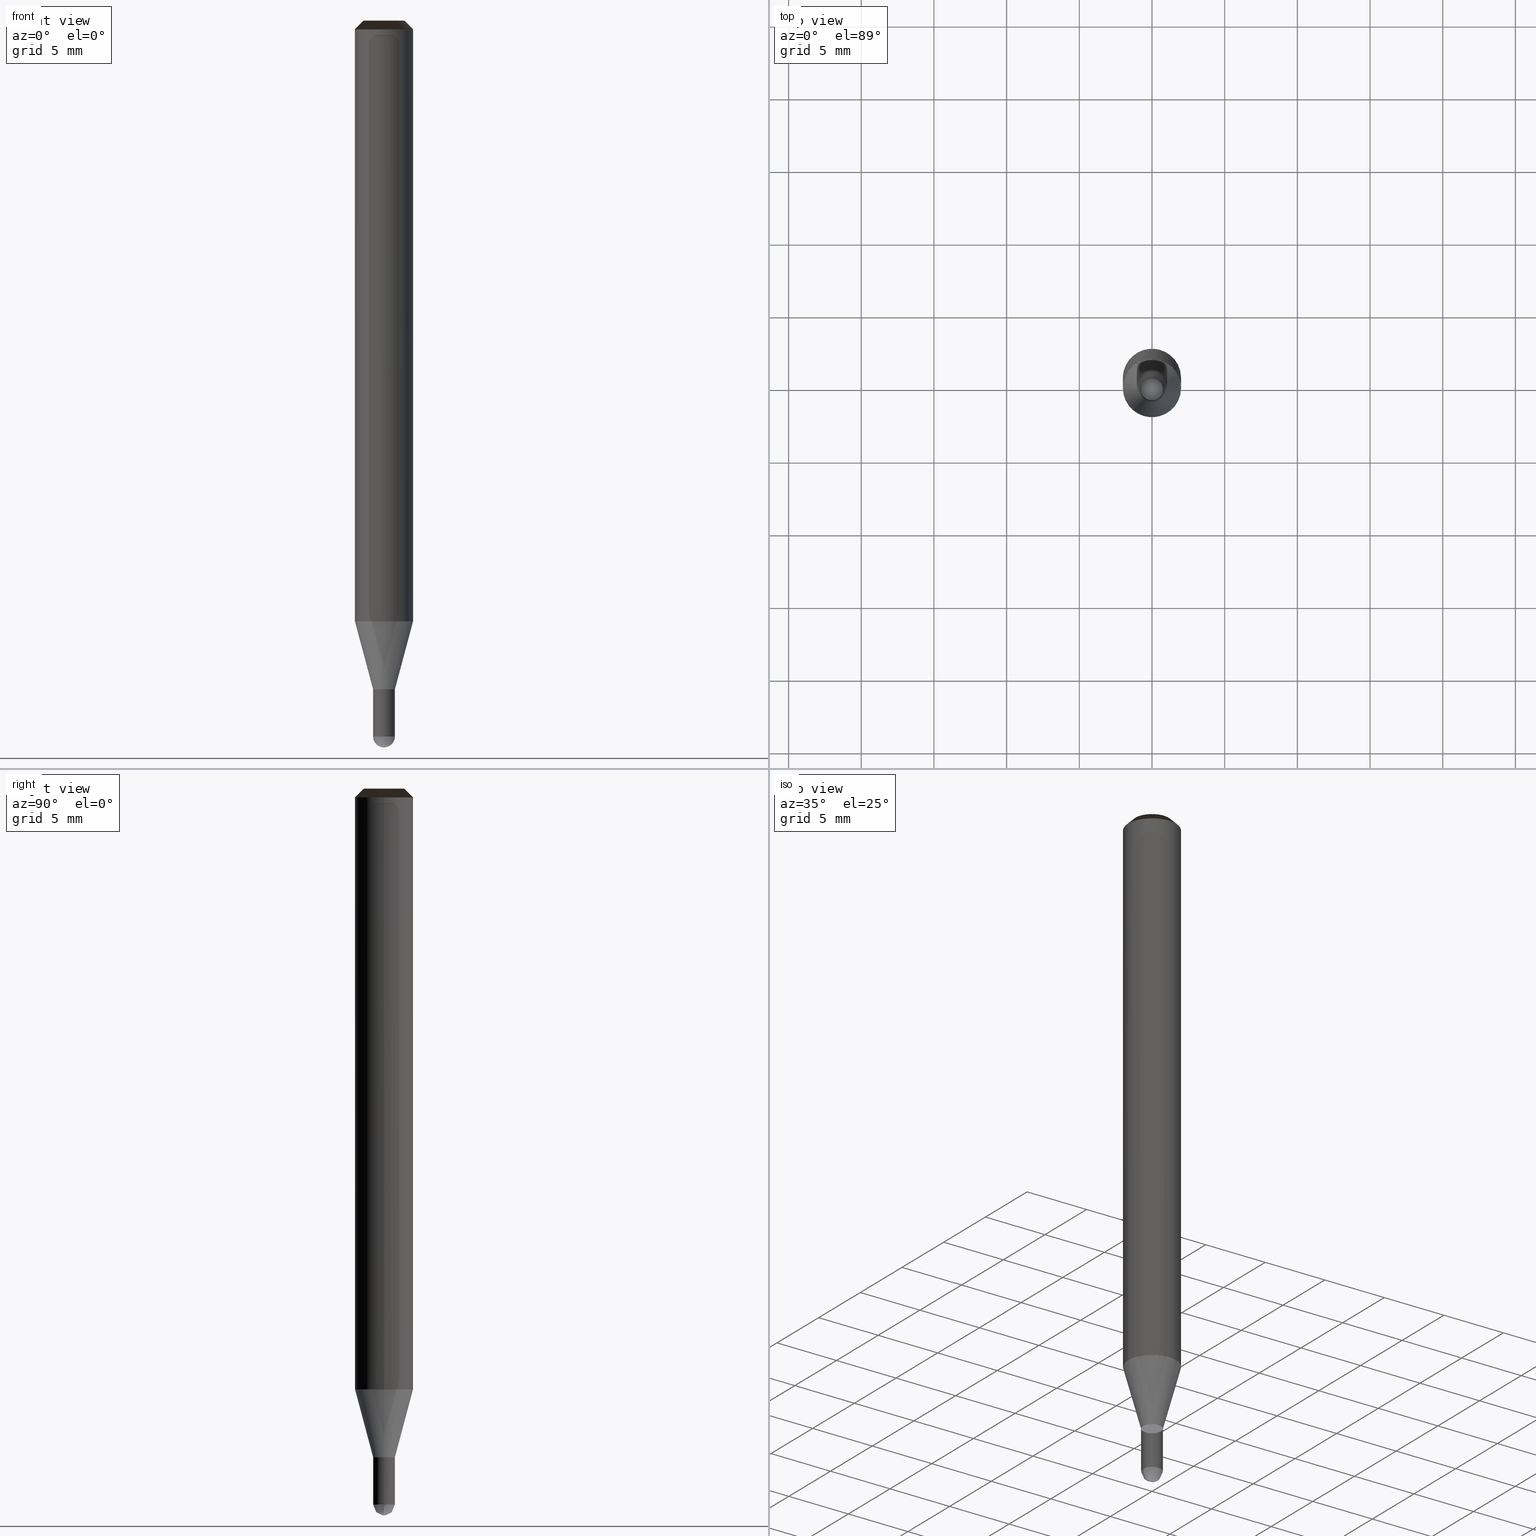
[diagram: canonical four-view strip — front | top / right | iso, engineering-drawing reading convention]
A machine part, canonical four-view strip (front | top / right | iso — engineering-drawing reading convention). The complete STEP part file that produces these views, byte-faithful:
ISO-10303-21;
HEADER;
/* Generated by ISBE GmbH (www.isbe.de) */
/* OPTION: using custom schema-name function */

FILE_DESCRIPTION(
/* description */ (''),
/* implementation_level */ '2;1');

FILE_NAME(
/*name*/ 'SHBS-2015-S04-STH',
/*time_stamp*/'2023-9-12T13:59:24',
/*author*/ ('ISBE GmbH'),
/*organization*/ ('ISBE GmbH'),
/*preprocessor_version*/ 'STEP IO v1.0',
/*originating_system*/ '',
/*authorisation*/ '');

FILE_SCHEMA (('AUTOMOTIVE_DESIGN'));
ENDSEC;

DATA;
#10=SHAPE_DEFINITION_REPRESENTATION(#11,#57);
#11=PRODUCT_DEFINITION_SHAPE('Document','',#13);
#12=PRODUCT_DEFINITION_CONTEXT('3D Mechanical Parts',#17,'design');
#13=PRODUCT_DEFINITION('A','First version',#14,#12);
#14=PRODUCT_DEFINITION_FORMATION_WITH_SPECIFIED_SOURCE('A','First version',#19,.MADE.);
#15=PRODUCT_RELATED_PRODUCT_CATEGORY('tool','tool',(#19));
#16=APPLICATION_PROTOCOL_DEFINITION('Draft International Standard', 'automotive_design',1999,#17);
#17=APPLICATION_CONTEXT('data for automotive mechanical design processes');
#18=PRODUCT_CONTEXT('3D Mechanical Parts',#17,'mechanical');
#19=PRODUCT('Document','Document','ISBE converted to STEP',(#18));
#20=(
LENGTH_UNIT()
NAMED_UNIT(*)
SI_UNIT(.MILLI.,.METRE.)
);
#21=(
NAMED_UNIT(*)
PLANE_ANGLE_UNIT()
SI_UNIT($,.RADIAN.)
);
#22=DIMENSIONAL_EXPONENTS(0.,0.,0.,0.,0.,0.,0.);
#23=PLANE_ANGLE_MEASURE_WITH_UNIT(PLANE_ANGLE_MEASURE(0.01745329252),#21);
#24=(
CONVERSION_BASED_UNIT('DEGREES',#23)
NAMED_UNIT(#22)
PLANE_ANGLE_UNIT()
);
#25=(
NAMED_UNIT(*)
SI_UNIT($,.STERADIAN.)
SOLID_ANGLE_UNIT()
);
#26=UNCERTAINTY_MEASURE_WITH_UNIT(LENGTH_MEASURE(0.001),#20, 'DISTANCE_ACCURACY_VALUE', 'Maximum model space distance between geometric entities at asserted connectivities');
#27=(
GEOMETRIC_REPRESENTATION_CONTEXT(3)
GLOBAL_UNCERTAINTY_ASSIGNED_CONTEXT((#26))
GLOBAL_UNIT_ASSIGNED_CONTEXT((#25,#24,#20))
REPRESENTATION_CONTEXT('ID1','3D')
);
#28=CARTESIAN_POINT('',(0.0,0.0,0.0));
#29=DIRECTION('',(1.0,0.0,0.0));
#30=DIRECTION('',(0.0,0.0,1.0));
#31=AXIS2_PLACEMENT_3D('',#28,#30,#29);
#32=CARTESIAN_POINT('',(0.0,0.0,0.0));
#33=DIRECTION('',(1.0,0.0,0.0));
#34=DIRECTION('',(0.0,0.0,1.0));
#35=AXIS2_PLACEMENT_3D('',#32,#34,#33);
#36=CARTESIAN_POINT('',(0.0,0.0,0.0));
#37=DIRECTION('',(1.0,0.0,0.0));
#38=DIRECTION('',(0.0,0.0,1.0));
#39=AXIS2_PLACEMENT_3D('',#36,#38,#37);
#40=CARTESIAN_POINT('',(0.0,0.0,0.0));
#41=DIRECTION('',(0.0,0.0,1.0));
#42=DIRECTION('',(1.0,0.0,0.0));
#43=AXIS2_PLACEMENT_3D('MCS',#40,#42,#41);
#44=CARTESIAN_POINT('',(0.0,0.0,41.334));
#45=DIRECTION('',(0.0,0.0,1.0));
#46=DIRECTION('',(1.0,0.0,0.0));
#47=AXIS2_PLACEMENT_3D('PCS',#44,#46,#45);
#48=CARTESIAN_POINT('',(0.0,0.0,-8.666));
#49=DIRECTION('',(0.0,0.0,1.0));
#50=DIRECTION('',(1.0,0.0,0.0));
#51=AXIS2_PLACEMENT_3D('CIP',#48,#50,#49);
#52=CARTESIAN_POINT('',(0.0,-0.75,-8.666));
#53=DIRECTION('',(0.0,0.0,1.0));
#54=DIRECTION('',(1.0,0.0,0.0));
#55=AXIS2_PLACEMENT_3D('CRP',#52,#54,#53);
#57=SHAPE_REPRESENTATION('Document',(#31,#35,#39,#43,#47,#51,#55),#27);
#58=DIRECTION('',(1.0,0.0,0.0));
#59=DIRECTION('',(0.0,0.0,1.0));
#60=CARTESIAN_POINT('',(-0.007499618017,-0.00007569408,-8.665879775699));
#61=CARTESIAN_POINT('',(-0.007264440578,-0.022914759262,-8.665614662151));
#62=CARTESIAN_POINT('',(-0.006968593454,-0.047544687584,-8.664459044563));
#63=CARTESIAN_POINT('',(-0.006592065794,-0.071714934043,-8.662534334712));
#64=CARTESIAN_POINT('',(-0.006089863845,-0.095714331887,-8.659842510367));
#65=CARTESIAN_POINT('',(-0.005420191534,-0.119577141114,-8.656386337561));
#66=CARTESIAN_POINT('',(-0.004542526544,-0.14329699037,-8.652169367743));
#67=CARTESIAN_POINT('',(-0.003417547289,-0.166855704946,-8.647195934136));
#68=CARTESIAN_POINT('',(-0.002007275614,-0.190230348026,-8.641471147279));
#69=CARTESIAN_POINT('',(-0.00027526409,-0.213395512438,-8.635000889777));
#70=CARTESIAN_POINT('',(0.001813206223,-0.236324207674,-8.627791810258));
#71=CARTESIAN_POINT('',(0.004290927331,-0.25898824713,-8.619851316537));
#72=CARTESIAN_POINT('',(0.007188568996,-0.281358436449,-8.61118756801));
#73=CARTESIAN_POINT('',(0.010534488597,-0.303404678876,-8.601809467262));
#74=CARTESIAN_POINT('',(0.014354547604,-0.325096047639,-8.591726650927));
#75=CARTESIAN_POINT('',(0.018671935936,-0.346400848944,-8.58094947978));
#76=CARTESIAN_POINT('',(0.023507005404,-0.367286687561,-8.569489028093));
#77=CARTESIAN_POINT('',(0.028877113444,-0.387720541355,-8.557357072254));
#78=CARTESIAN_POINT('',(0.034796478385,-0.407668848257,-8.544566078669));
#79=CARTESIAN_POINT('',(0.041276047482,-0.427097607519,-8.531129190948));
#80=CARTESIAN_POINT('',(0.048323378998,-0.445972496128,-8.517060216401));
#81=CARTESIAN_POINT('',(0.055942539583,-0.464259000548,-8.502373611851));
#82=CARTESIAN_POINT('',(0.064134018198,-0.481922563522,-8.487084468777));
#83=CARTESIAN_POINT('',(0.072894657796,-0.498928745242,-8.471208497806));
#84=CARTESIAN_POINT('',(0.082217605908,-0.515243397907,-8.454762012573));
#85=CARTESIAN_POINT('',(0.092092285213,-0.530832852409,-8.437761912953));
#86=CARTESIAN_POINT('',(0.102504385064,-0.545664115623,-8.420225667696));
#87=CARTESIAN_POINT('',(0.113435874833,-0.559705076606,-8.402171296481));
#88=CARTESIAN_POINT('',(0.124865039771,-0.572924719765,-8.383617351394));
#89=CARTESIAN_POINT('',(0.136766539957,-0.585293342939,-8.364582897868));
#90=CARTESIAN_POINT('',(0.149111492678,-0.596782778159,-8.345087495092));
#91=CARTESIAN_POINT('',(0.161867578431,-0.607366612769,-8.325151175908));
#92=CARTESIAN_POINT('',(0.174999170476,-0.617020408465,-8.304794426233));
#93=CARTESIAN_POINT('',(0.188467487699,-0.625721915804,-8.284038164003));
#94=CARTESIAN_POINT('',(0.202230770238,-0.633451281653,-8.262903717681));
#95=CARTESIAN_POINT('',(0.216244477153,-0.640191247108,-8.241412804338));
#96=CARTESIAN_POINT('',(0.230461505126,-0.645927333406,-8.219587507342));
#97=CARTESIAN_POINT('',(0.24483242696,-0.650648013464,-8.19745025366));
#98=CARTESIAN_POINT('',(0.259305748389,-0.654344866751,-8.175023790816));
#99=CARTESIAN_POINT('',(0.273828181518,-0.657012715369,-8.152331163518));
#100=CARTESIAN_POINT('',(0.288344932941,-0.658649739352,-8.129395689973));
#101=CARTESIAN_POINT('',(0.302800004453,-0.65925756942,-8.106240937932));
#102=CARTESIAN_POINT('',(0.317136504044,-0.658841355639,-8.082890700467));
#103=CARTESIAN_POINT('',(0.33129696473,-0.657409810669,-8.059368971526));
#104=CARTESIAN_POINT('',(0.345223668669,-0.654975226583,-8.035699921275));
#105=CARTESIAN_POINT('',(0.358858973882,-0.651553464494,-8.011907871263));
#106=CARTESIAN_POINT('',(0.372145640857,-0.647163916558,-7.988017269431));
#107=CARTESIAN_POINT('',(0.385027156301,-0.641829440193,-7.964052664986));
#108=CARTESIAN_POINT('',(0.397448051273,-0.6355762647,-7.940038683179));
#109=CARTESIAN_POINT('',(0.409354211005,-0.628433870771,-7.916));
#110=CARTESIAN_POINT('',(0.446916044361,-0.602300630327,-7.836731707317));
#111=CARTESIAN_POINT('',(0.482814287301,-0.573925399315,-7.757463414634));
#112=CARTESIAN_POINT('',(0.516915312997,-0.543413801067,-7.678195121951));
#113=CARTESIAN_POINT('',(0.549092184544,-0.510879411283,-7.598926829268));
#114=CARTESIAN_POINT('',(0.579225127466,-0.476443335258,-7.519658536585));
#115=CARTESIAN_POINT('',(0.607201975562,-0.44023375708,-7.440390243902));
#116=CARTESIAN_POINT('',(0.63291858843,-0.402385462485,-7.36112195122));
#117=CARTESIAN_POINT('',(0.656279239118,-0.363039337128,-7.281853658537));
#118=CARTESIAN_POINT('',(0.677196970456,-0.322341842158,-7.202585365854));
#119=CARTESIAN_POINT('',(0.695593918741,-0.280444469031,-7.123317073171));
#120=CARTESIAN_POINT('',(0.711401603581,-0.237503175604,-7.044048780488));
#121=CARTESIAN_POINT('',(0.724561182798,-0.1936778056,-6.964780487805));
#122=CARTESIAN_POINT('',(0.735023671465,-0.149131493608,-6.885512195122));
#123=CARTESIAN_POINT('',(0.742750124245,-0.104030057837,-6.806243902439));
#124=CARTESIAN_POINT('',(0.747711780361,-0.058541382876,-6.726975609756));
#125=CARTESIAN_POINT('',(0.749890170654,-0.012834794763,-6.647707317073));
#126=CARTESIAN_POINT('',(0.749277186331,0.032919569307,-6.56843902439));
#127=CARTESIAN_POINT('',(0.745875109153,0.078551394298,-6.489170731707));
#128=CARTESIAN_POINT('',(0.739696602935,0.123890821313,-6.409902439024));
#129=CARTESIAN_POINT('',(0.730764666414,0.168769079871,-6.330634146341));
#130=CARTESIAN_POINT('',(0.719112547633,0.213019116131,-6.251365853659));
#131=CARTESIAN_POINT('',(0.70478362018,0.256476214737,-6.172097560976));
#132=CARTESIAN_POINT('',(0.68783122174,0.298978611944,-6.092829268293));
#133=CARTESIAN_POINT('',(0.668318455546,0.340368097766,-6.01356097561));
#134=CARTESIAN_POINT('',(0.646317955488,0.380490604896,-5.934292682927));
#135=CARTESIAN_POINT('',(0.621911615742,0.419196782198,-5.855024390244));
#136=CARTESIAN_POINT('',(0.595190285928,0.456342550654,-5.775756097561));
#137=CARTESIAN_POINT('',(0.566253432934,0.491789639673,-5.696487804878));
#138=CARTESIAN_POINT('',(0.535208770663,0.525406101796,-5.617219512195));
#139=CARTESIAN_POINT('',(0.502171859081,0.557066803846,-5.537951219512));
#140=CARTESIAN_POINT('',(0.467265674057,0.586653892724,-5.458682926829));
#141=CARTESIAN_POINT('',(0.430620149605,0.614057234103,-5.379414634146));
#142=CARTESIAN_POINT('',(0.392371694214,0.639174822392,-5.300146341463));
#143=CARTESIAN_POINT('',(0.352662683092,0.661913160433,-5.22087804878));
#144=CARTESIAN_POINT('',(0.311640928185,0.682187607539,-5.141609756098));
#145=CARTESIAN_POINT('',(0.269459127966,0.699922694557,-5.062341463415));
#146=CARTESIAN_POINT('',(0.226274299039,0.715052404789,-4.983073170732));
#147=CARTESIAN_POINT('',(0.182247191657,0.727520419736,-4.903804878049));
#148=CARTESIAN_POINT('',(0.137541691352,0.737280328735,-4.824536585366));
#149=CARTESIAN_POINT('',(0.092324208892,0.744295801716,-4.745268292683));
#150=CARTESIAN_POINT('',(0.046763060836,0.748540724437,-4.666));
#151=CARTESIAN_POINT('',(0.007499618017,0.00007569408,-8.665879775699));
#152=CARTESIAN_POINT('',(0.007264440578,0.022914759262,-8.665614662151));
#153=CARTESIAN_POINT('',(0.006968593454,0.047544687584,-8.664459044563));
#154=CARTESIAN_POINT('',(0.006592065794,0.071714934043,-8.662534334712));
#155=CARTESIAN_POINT('',(0.006089863845,0.095714331887,-8.659842510367));
#156=CARTESIAN_POINT('',(0.005420191534,0.119577141114,-8.656386337561));
#157=CARTESIAN_POINT('',(0.004542526544,0.14329699037,-8.652169367743));
#158=CARTESIAN_POINT('',(0.003417547289,0.166855704946,-8.647195934136));
#159=CARTESIAN_POINT('',(0.002007275614,0.190230348026,-8.641471147279));
#160=CARTESIAN_POINT('',(0.00027526409,0.213395512438,-8.635000889777));
#161=CARTESIAN_POINT('',(-0.001813206223,0.236324207674,-8.627791810258));
#162=CARTESIAN_POINT('',(-0.004290927331,0.25898824713,-8.619851316537));
#163=CARTESIAN_POINT('',(-0.007188568996,0.281358436449,-8.61118756801));
#164=CARTESIAN_POINT('',(-0.010534488597,0.303404678876,-8.601809467262));
#165=CARTESIAN_POINT('',(-0.014354547604,0.325096047639,-8.591726650927));
#166=CARTESIAN_POINT('',(-0.018671935936,0.346400848944,-8.58094947978));
#167=CARTESIAN_POINT('',(-0.023507005404,0.367286687561,-8.569489028093));
#168=CARTESIAN_POINT('',(-0.028877113444,0.387720541355,-8.557357072254));
#169=CARTESIAN_POINT('',(-0.034796478385,0.407668848257,-8.544566078669));
#170=CARTESIAN_POINT('',(-0.041276047482,0.427097607519,-8.531129190948));
#171=CARTESIAN_POINT('',(-0.048323378998,0.445972496128,-8.517060216401));
#172=CARTESIAN_POINT('',(-0.055942539583,0.464259000548,-8.502373611851));
#173=CARTESIAN_POINT('',(-0.064134018198,0.481922563522,-8.487084468777));
#174=CARTESIAN_POINT('',(-0.072894657796,0.498928745242,-8.471208497806));
#175=CARTESIAN_POINT('',(-0.082217605908,0.515243397907,-8.454762012573));
#176=CARTESIAN_POINT('',(-0.092092285213,0.530832852409,-8.437761912953));
#177=CARTESIAN_POINT('',(-0.102504385064,0.545664115623,-8.420225667696));
#178=CARTESIAN_POINT('',(-0.113435874833,0.559705076606,-8.402171296481));
#179=CARTESIAN_POINT('',(-0.124865039771,0.572924719765,-8.383617351394));
#180=CARTESIAN_POINT('',(-0.136766539957,0.585293342939,-8.364582897868));
#181=CARTESIAN_POINT('',(-0.149111492678,0.596782778159,-8.345087495092));
#182=CARTESIAN_POINT('',(-0.161867578431,0.607366612769,-8.325151175908));
#183=CARTESIAN_POINT('',(-0.174999170476,0.617020408465,-8.304794426233));
#184=CARTESIAN_POINT('',(-0.188467487699,0.625721915804,-8.284038164003));
#185=CARTESIAN_POINT('',(-0.202230770238,0.633451281653,-8.262903717681));
#186=CARTESIAN_POINT('',(-0.216244477153,0.640191247108,-8.241412804338));
#187=CARTESIAN_POINT('',(-0.230461505126,0.645927333406,-8.219587507342));
#188=CARTESIAN_POINT('',(-0.24483242696,0.650648013464,-8.19745025366));
#189=CARTESIAN_POINT('',(-0.259305748389,0.654344866751,-8.175023790816));
#190=CARTESIAN_POINT('',(-0.273828181518,0.657012715369,-8.152331163518));
#191=CARTESIAN_POINT('',(-0.288344932941,0.658649739352,-8.129395689973));
#192=CARTESIAN_POINT('',(-0.302800004453,0.65925756942,-8.106240937932));
#193=CARTESIAN_POINT('',(-0.317136504044,0.658841355639,-8.082890700467));
#194=CARTESIAN_POINT('',(-0.33129696473,0.657409810669,-8.059368971526));
#195=CARTESIAN_POINT('',(-0.345223668669,0.654975226583,-8.035699921275));
#196=CARTESIAN_POINT('',(-0.358858973882,0.651553464494,-8.011907871263));
#197=CARTESIAN_POINT('',(-0.372145640857,0.647163916558,-7.988017269431));
#198=CARTESIAN_POINT('',(-0.385027156301,0.641829440193,-7.964052664986));
#199=CARTESIAN_POINT('',(-0.397448051273,0.6355762647,-7.940038683179));
#200=CARTESIAN_POINT('',(-0.409354211005,0.628433870771,-7.916));
#201=CARTESIAN_POINT('',(-0.446916044361,0.602300630327,-7.836731707317));
#202=CARTESIAN_POINT('',(-0.482814287301,0.573925399315,-7.757463414634));
#203=CARTESIAN_POINT('',(-0.516915312997,0.543413801067,-7.678195121951));
#204=CARTESIAN_POINT('',(-0.549092184544,0.510879411283,-7.598926829268));
#205=CARTESIAN_POINT('',(-0.579225127466,0.476443335258,-7.519658536585));
#206=CARTESIAN_POINT('',(-0.607201975562,0.44023375708,-7.440390243902));
#207=CARTESIAN_POINT('',(-0.63291858843,0.402385462485,-7.36112195122));
#208=CARTESIAN_POINT('',(-0.656279239118,0.363039337128,-7.281853658537));
#209=CARTESIAN_POINT('',(-0.677196970456,0.322341842158,-7.202585365854));
#210=CARTESIAN_POINT('',(-0.695593918741,0.280444469031,-7.123317073171));
#211=CARTESIAN_POINT('',(-0.711401603581,0.237503175604,-7.044048780488));
#212=CARTESIAN_POINT('',(-0.724561182798,0.1936778056,-6.964780487805));
#213=CARTESIAN_POINT('',(-0.735023671465,0.149131493608,-6.885512195122));
#214=CARTESIAN_POINT('',(-0.742750124245,0.104030057837,-6.806243902439));
#215=CARTESIAN_POINT('',(-0.747711780361,0.058541382876,-6.726975609756));
#216=CARTESIAN_POINT('',(-0.749890170654,0.012834794763,-6.647707317073));
#217=CARTESIAN_POINT('',(-0.749277186331,-0.032919569307,-6.56843902439));
#218=CARTESIAN_POINT('',(-0.745875109153,-0.078551394298,-6.489170731707));
#219=CARTESIAN_POINT('',(-0.739696602935,-0.123890821313,-6.409902439024));
#220=CARTESIAN_POINT('',(-0.730764666414,-0.168769079871,-6.330634146341));
#221=CARTESIAN_POINT('',(-0.719112547633,-0.213019116131,-6.251365853659));
#222=CARTESIAN_POINT('',(-0.70478362018,-0.256476214737,-6.172097560976));
#223=CARTESIAN_POINT('',(-0.68783122174,-0.298978611944,-6.092829268293));
#224=CARTESIAN_POINT('',(-0.668318455546,-0.340368097766,-6.01356097561));
#225=CARTESIAN_POINT('',(-0.646317955488,-0.380490604896,-5.934292682927));
#226=CARTESIAN_POINT('',(-0.621911615742,-0.419196782198,-5.855024390244));
#227=CARTESIAN_POINT('',(-0.595190285928,-0.456342550654,-5.775756097561));
#228=CARTESIAN_POINT('',(-0.566253432934,-0.491789639673,-5.696487804878));
#229=CARTESIAN_POINT('',(-0.535208770663,-0.525406101796,-5.617219512195));
#230=CARTESIAN_POINT('',(-0.502171859081,-0.557066803846,-5.537951219512));
#231=CARTESIAN_POINT('',(-0.467265674057,-0.586653892724,-5.458682926829));
#232=CARTESIAN_POINT('',(-0.430620149605,-0.614057234103,-5.379414634146));
#233=CARTESIAN_POINT('',(-0.392371694214,-0.639174822392,-5.300146341463));
#234=CARTESIAN_POINT('',(-0.352662683092,-0.661913160433,-5.22087804878));
#235=CARTESIAN_POINT('',(-0.311640928185,-0.682187607539,-5.141609756098));
#236=CARTESIAN_POINT('',(-0.269459127966,-0.699922694557,-5.062341463415));
#237=CARTESIAN_POINT('',(-0.226274299039,-0.715052404789,-4.983073170732));
#238=CARTESIAN_POINT('',(-0.182247191657,-0.727520419736,-4.903804878049));
#239=CARTESIAN_POINT('',(-0.137541691352,-0.737280328735,-4.824536585366));
#240=CARTESIAN_POINT('',(-0.092324208892,-0.744295801716,-4.745268292683));
#241=CARTESIAN_POINT('',(-0.046763060836,-0.748540724437,-4.666));
#242=CARTESIAN_POINT('',(0.0,0.0,-8.666));
#243=CARTESIAN_POINT('',(0.75,0.0,-8.666));
#244=CARTESIAN_POINT('',(0.75,0.75,-8.666));
#245=CARTESIAN_POINT('',(0.0,0.75,-8.666));
#246=CARTESIAN_POINT('',(-0.75,0.75,-8.666));
#247=CARTESIAN_POINT('',(-0.75,0.0,-8.666));
#248=CARTESIAN_POINT('',(0.75,0.0,-7.916));
#249=CARTESIAN_POINT('',(0.75,0.75,-7.916));
#250=CARTESIAN_POINT('',(0.0,0.75,-7.916));
#251=CARTESIAN_POINT('',(-0.75,0.75,-7.916));
#252=CARTESIAN_POINT('',(-0.75,0.0,-7.916));
#253=CARTESIAN_POINT('',(0.75,0.0,-4.666));
#254=CARTESIAN_POINT('',(0.75,0.75,-4.666));
#255=CARTESIAN_POINT('',(0.0,0.75,-4.666));
#256=CARTESIAN_POINT('',(-0.75,0.75,-4.666));
#257=CARTESIAN_POINT('',(-0.75,0.0,-4.666));
#258=CARTESIAN_POINT('',(0.0,0.0,-4.666));
#259=CARTESIAN_POINT('',(-0.75,-0.75,-8.666));
#260=CARTESIAN_POINT('',(0.0,-0.75,-8.666));
#261=CARTESIAN_POINT('',(0.75,-0.75,-8.666));
#262=CARTESIAN_POINT('',(-0.75,-0.75,-7.916));
#263=CARTESIAN_POINT('',(0.0,-0.75,-7.916));
#264=CARTESIAN_POINT('',(0.75,-0.75,-7.916));
#265=CARTESIAN_POINT('',(-0.75,-0.75,-4.666));
#266=CARTESIAN_POINT('',(0.0,-0.75,-4.666));
#267=CARTESIAN_POINT('',(0.75,-0.75,-4.666));
#268=CARTESIAN_POINT('',(0.75,0.0,-4.665063509461));
#269=CARTESIAN_POINT('',(0.75,0.75,-4.665063509461));
#270=CARTESIAN_POINT('',(0.0,0.75,-4.665063509461));
#271=CARTESIAN_POINT('',(-0.75,0.75,-4.665063509461));
#272=CARTESIAN_POINT('',(-0.75,0.0,-4.665063509461));
#273=CARTESIAN_POINT('',(2.0,0.0,0.0));
#274=CARTESIAN_POINT('',(2.0,2.0,0.0));
#275=CARTESIAN_POINT('',(0.0,2.0,0.0));
#276=CARTESIAN_POINT('',(-2.0,2.0,0.0));
#277=CARTESIAN_POINT('',(-2.0,0.0,0.0));
#278=CARTESIAN_POINT('',(2.0,0.0,40.734));
#279=CARTESIAN_POINT('',(2.0,2.0,40.734));
#280=CARTESIAN_POINT('',(0.0,2.0,40.734));
#281=CARTESIAN_POINT('',(-2.0,2.0,40.734));
#282=CARTESIAN_POINT('',(-2.0,0.0,40.734));
#283=CARTESIAN_POINT('',(1.4,0.0,41.334));
#284=CARTESIAN_POINT('',(1.4,1.4,41.334));
#285=CARTESIAN_POINT('',(0.0,1.4,41.334));
#286=CARTESIAN_POINT('',(-1.4,1.4,41.334));
#287=CARTESIAN_POINT('',(-1.4,0.0,41.334));
#288=CARTESIAN_POINT('',(0.0,0.0,41.334));
#289=CARTESIAN_POINT('',(-0.75,-0.75,-4.665063509461));
#290=CARTESIAN_POINT('',(0.0,-0.75,-4.665063509461));
#291=CARTESIAN_POINT('',(0.75,-0.75,-4.665063509461));
#292=CARTESIAN_POINT('',(-2.0,-2.0,0.0));
#293=CARTESIAN_POINT('',(0.0,-2.0,0.0));
#294=CARTESIAN_POINT('',(2.0,-2.0,0.0));
#295=CARTESIAN_POINT('',(-2.0,-2.0,40.734));
#296=CARTESIAN_POINT('',(0.0,-2.0,40.734));
#297=CARTESIAN_POINT('',(2.0,-2.0,40.734));
#298=CARTESIAN_POINT('',(-1.4,-1.4,41.334));
#299=CARTESIAN_POINT('',(0.0,-1.4,41.334));
#300=CARTESIAN_POINT('',(1.4,-1.4,41.334));
#301=(
BOUNDED_CURVE()
B_SPLINE_CURVE(1,(#60,#61,#62,#63,#64,#65,#66,#67,#68,#69,#70,#71,#72,#73,#74,#75,#76,#77,#78,#79,#80,#81,#82,#83,#84,#85,#86,#87,#88,#89,#90,#91,#92,#93,#94,#95,#96,#97,#98,#99,#100,#101,#102,#103,#104,#105,#106,#107,#108,#109,#110,#111,#112,#113,#114,#115,#116,#117,#118,#119,#120,#121,#122,#123,#124,#125,#126,#127,#128,#129,#130,#131,#132,#133,#134,#135,#136,#137,#138,#139,#140,#141,#142,#143,#144,#145,#146,#147,#148,#149,#150),.UNSPECIFIED.,.F.,.F.)
B_SPLINE_CURVE_WITH_KNOTS((2,1,1,1,1,1,1,1,1,1,1,1,1,1,1,1,1,1,1,1,1,1,1,1,1,1,1,1,1,1,1,1,1,1,1,1,1,1,1,1,1,1,1,1,1,1,1,1,1,1,1,1,1,1,1,1,1,1,1,1,1,1,1,1,1,1,1,1,1,1,1,1,1,1,1,1,1,1,1,1,1,1,1,1,1,1,1,1,1,1,2),
(0.0,0.004566238389,0.009495704583,0.014343385589,0.019172160434,0.023994136058,0.02881344698,0.033632049999,0.03845116029,0.043271733784,0.048094663823,0.052920872454,0.057751356042,0.062587208007,0.067429628413,0.072279924947,0.077139507644,0.082009878662,0.086892618026,0.091789365974,0.096701802533,0.101631624845,0.106580522845,0.111550153828,0.116542116484,0.12155792496,0.126598983488,0.131666562095,0.136761773847,0.141885554048,0.147038641754,0.152221563863,0.157434622031,0.162677882545,0.167951169249,0.173254059552,0.178585883504,0.18394572586,0.189332431022,0.194744610739,0.200180654376,0.205638741581,0.211116857147,0.21661280786,0.222124241111,0.227648665071,0.233183470177,0.238725951746,0.244273333462,0.249822791537,0.268119796621,0.286416801706,0.30471380679,0.323010811874,0.341307816959,0.359604822043,0.377901827128,0.396198832212,0.414495837297,0.432792842381,0.451089847466,0.46938685255,0.487683857635,0.505980862719,0.524277867804,0.542574872888,0.560871877973,0.579168883057,0.597465888142,0.615762893226,0.634059898311,0.652356903395,0.670653908479,0.688950913564,0.707247918648,0.725544923733,0.743841928817,0.762138933902,0.780435938986,0.798732944071,0.817029949155,0.83532695424,0.853623959324,0.871920964409,0.890217969493,0.908514974578,0.926811979662,0.945108984747,0.963405989831,0.981702994916,1.0),.UNSPECIFIED.)
CURVE()
GEOMETRIC_REPRESENTATION_ITEM()
RATIONAL_B_SPLINE_CURVE((1.0,1.0,1.0,1.0,1.0,1.0,1.0,1.0,1.0,1.0,1.0,1.0,1.0,1.0,1.0,1.0,1.0,1.0,1.0,1.0,1.0,1.0,1.0,1.0,1.0,1.0,1.0,1.0,1.0,1.0,1.0,1.0,1.0,1.0,1.0,1.0,1.0,1.0,1.0,1.0,1.0,1.0,1.0,1.0,1.0,1.0,1.0,1.0,1.0,1.0,1.0,1.0,1.0,1.0,1.0,1.0,1.0,1.0,1.0,1.0,1.0,1.0,1.0,1.0,1.0,1.0,1.0,1.0,1.0,1.0,1.0,1.0,1.0,1.0,1.0,1.0,1.0,1.0,1.0,1.0,1.0,1.0,1.0,1.0,1.0,1.0,1.0,1.0,1.0,1.0,1.0))
REPRESENTATION_ITEM('')
);
#302=(
BOUNDED_CURVE()
B_SPLINE_CURVE(1,(#151,#152,#153,#154,#155,#156,#157,#158,#159,#160,#161,#162,#163,#164,#165,#166,#167,#168,#169,#170,#171,#172,#173,#174,#175,#176,#177,#178,#179,#180,#181,#182,#183,#184,#185,#186,#187,#188,#189,#190,#191,#192,#193,#194,#195,#196,#197,#198,#199,#200,#201,#202,#203,#204,#205,#206,#207,#208,#209,#210,#211,#212,#213,#214,#215,#216,#217,#218,#219,#220,#221,#222,#223,#224,#225,#226,#227,#228,#229,#230,#231,#232,#233,#234,#235,#236,#237,#238,#239,#240,#241),.UNSPECIFIED.,.F.,.F.)
B_SPLINE_CURVE_WITH_KNOTS((2,1,1,1,1,1,1,1,1,1,1,1,1,1,1,1,1,1,1,1,1,1,1,1,1,1,1,1,1,1,1,1,1,1,1,1,1,1,1,1,1,1,1,1,1,1,1,1,1,1,1,1,1,1,1,1,1,1,1,1,1,1,1,1,1,1,1,1,1,1,1,1,1,1,1,1,1,1,1,1,1,1,1,1,1,1,1,1,1,1,2),
(0.0,0.004566238389,0.009495704583,0.014343385589,0.019172160434,0.023994136058,0.02881344698,0.033632049999,0.03845116029,0.043271733784,0.048094663823,0.052920872454,0.057751356042,0.062587208007,0.067429628413,0.072279924947,0.077139507644,0.082009878662,0.086892618026,0.091789365974,0.096701802533,0.101631624845,0.106580522845,0.111550153828,0.116542116484,0.12155792496,0.126598983488,0.131666562095,0.136761773847,0.141885554048,0.147038641754,0.152221563863,0.157434622031,0.162677882545,0.167951169249,0.173254059552,0.178585883504,0.18394572586,0.189332431022,0.194744610739,0.200180654376,0.205638741581,0.211116857147,0.21661280786,0.222124241111,0.227648665071,0.233183470177,0.238725951746,0.244273333462,0.249822791537,0.268119796621,0.286416801706,0.30471380679,0.323010811874,0.341307816959,0.359604822043,0.377901827128,0.396198832212,0.414495837297,0.432792842381,0.451089847466,0.46938685255,0.487683857635,0.505980862719,0.524277867804,0.542574872888,0.560871877973,0.579168883057,0.597465888142,0.615762893226,0.634059898311,0.652356903395,0.670653908479,0.688950913564,0.707247918648,0.725544923733,0.743841928817,0.762138933902,0.780435938986,0.798732944071,0.817029949155,0.83532695424,0.853623959324,0.871920964409,0.890217969493,0.908514974578,0.926811979662,0.945108984747,0.963405989831,0.981702994916,1.0),.UNSPECIFIED.)
CURVE()
GEOMETRIC_REPRESENTATION_ITEM()
RATIONAL_B_SPLINE_CURVE((1.0,1.0,1.0,1.0,1.0,1.0,1.0,1.0,1.0,1.0,1.0,1.0,1.0,1.0,1.0,1.0,1.0,1.0,1.0,1.0,1.0,1.0,1.0,1.0,1.0,1.0,1.0,1.0,1.0,1.0,1.0,1.0,1.0,1.0,1.0,1.0,1.0,1.0,1.0,1.0,1.0,1.0,1.0,1.0,1.0,1.0,1.0,1.0,1.0,1.0,1.0,1.0,1.0,1.0,1.0,1.0,1.0,1.0,1.0,1.0,1.0,1.0,1.0,1.0,1.0,1.0,1.0,1.0,1.0,1.0,1.0,1.0,1.0,1.0,1.0,1.0,1.0,1.0,1.0,1.0,1.0,1.0,1.0,1.0,1.0,1.0,1.0,1.0,1.0,1.0,1.0))
REPRESENTATION_ITEM('')
);
#303=SHAPE_REPRESENTATION_RELATIONSHIP('','',#57,#304);
#304=GEOMETRICALLY_BOUNDED_WIREFRAME_SHAPE_REPRESENTATION('Curves',(#305,#31),#27);
#305=GEOMETRIC_CURVE_SET('CurveSet',(#301,#302));
#306=(
BOUNDED_SURFACE()
B_SPLINE_SURFACE(2,2,(
(#242,#242,#242,#242,#242),
(#243,#244,#245,#246,#247),
(#248,#249,#250,#251,#252)
), .UNSPECIFIED.,.F.,.F.,.F.)
B_SPLINE_SURFACE_WITH_KNOTS((3,3),(3,2,3),(
0.0,1.0),(
0.0,0.5,1.0), .UNSPECIFIED.)
GEOMETRIC_REPRESENTATION_ITEM()
RATIONAL_B_SPLINE_SURFACE(((1.0,0.707106781187,1.0,0.707106781187,1.0),
(0.707106781187,0.5,0.707106781187,0.5,0.707106781187),
(1.0,0.707106781187,1.0,0.707106781187,1.0)
))
REPRESENTATION_ITEM('')
SURFACE()
);
#307=(
BOUNDED_CURVE()
B_SPLINE_CURVE(2,(#248,#249,#250,#251,#252),.UNSPECIFIED.,.F.,.F.)
B_SPLINE_CURVE_WITH_KNOTS((3,2,3),
(0.0,0.5,1.0),.UNSPECIFIED.)
CURVE()
GEOMETRIC_REPRESENTATION_ITEM()
RATIONAL_B_SPLINE_CURVE((1.0,0.707106781187,1.0,0.707106781187,1.0))
REPRESENTATION_ITEM('')
);
#308=(
BOUNDED_CURVE()
B_SPLINE_CURVE(2,(#252,#247,#242),.UNSPECIFIED.,.F.,.F.)
B_SPLINE_CURVE_WITH_KNOTS((3,3),
(0.0,1.0),.UNSPECIFIED.)
CURVE()
GEOMETRIC_REPRESENTATION_ITEM()
RATIONAL_B_SPLINE_CURVE((1.0,0.707106781187,1.0))
REPRESENTATION_ITEM('')
);
#309=(
BOUNDED_CURVE()
B_SPLINE_CURVE(2,(#242,#243,#248),.UNSPECIFIED.,.F.,.F.)
B_SPLINE_CURVE_WITH_KNOTS((3,3),
(0.0,1.0),.UNSPECIFIED.)
CURVE()
GEOMETRIC_REPRESENTATION_ITEM()
RATIONAL_B_SPLINE_CURVE((1.0,0.707106781187,1.0))
REPRESENTATION_ITEM('')
);
#310=VERTEX_POINT('',#242);
#311=VERTEX_POINT('',#248);
#312=VERTEX_POINT('',#252);
#313=EDGE_CURVE('',#311,#312,#307,.T.);
#314=EDGE_CURVE('',#312,#310,#308,.T.);
#315=EDGE_CURVE('',#310,#311,#309,.T.);
#316=ORIENTED_EDGE('',*,*,#313,.T.);
#317=ORIENTED_EDGE('',*,*,#314,.T.);
#318=ORIENTED_EDGE('',*,*,#315,.T.);
#319=EDGE_LOOP('',(#316,#317,#318));
#320=FACE_OUTER_BOUND('',#319,.T.);
#321=ADVANCED_FACE('',(#320),#306,.T.);
#322=(
BOUNDED_SURFACE()
B_SPLINE_SURFACE(1,2,(
(#248,#249,#250,#251,#252),
(#253,#254,#255,#256,#257)
), .UNSPECIFIED.,.F.,.F.,.F.)
B_SPLINE_SURFACE_WITH_KNOTS((2,2),(3,2,3),(
0.0,1.0),(
0.0,0.5,1.0), .UNSPECIFIED.)
GEOMETRIC_REPRESENTATION_ITEM()
RATIONAL_B_SPLINE_SURFACE(((1.0,0.707106781187,1.0,0.707106781187,1.0),
(1.0,0.707106781187,1.0,0.707106781187,1.0)
))
REPRESENTATION_ITEM('')
SURFACE()
);
#323=(
BOUNDED_CURVE()
B_SPLINE_CURVE(2,(#253,#254,#255,#256,#257),.UNSPECIFIED.,.F.,.F.)
B_SPLINE_CURVE_WITH_KNOTS((3,2,3),
(0.0,0.5,1.0),.UNSPECIFIED.)
CURVE()
GEOMETRIC_REPRESENTATION_ITEM()
RATIONAL_B_SPLINE_CURVE((1.0,0.707106781187,1.0,0.707106781187,1.0))
REPRESENTATION_ITEM('')
);
#324=(
BOUNDED_CURVE()
B_SPLINE_CURVE(1,(#257,#252),.UNSPECIFIED.,.F.,.F.)
B_SPLINE_CURVE_WITH_KNOTS((2,2),
(0.0,1.0),.UNSPECIFIED.)
CURVE()
GEOMETRIC_REPRESENTATION_ITEM()
RATIONAL_B_SPLINE_CURVE((1.0,1.0))
REPRESENTATION_ITEM('')
);
#325=(
BOUNDED_CURVE()
B_SPLINE_CURVE(2,(#252,#251,#250,#249,#248),.UNSPECIFIED.,.F.,.F.)
B_SPLINE_CURVE_WITH_KNOTS((3,2,3),
(0.0,0.5,1.0),.UNSPECIFIED.)
CURVE()
GEOMETRIC_REPRESENTATION_ITEM()
RATIONAL_B_SPLINE_CURVE((1.0,0.707106781187,1.0,0.707106781187,1.0))
REPRESENTATION_ITEM('')
);
#326=(
BOUNDED_CURVE()
B_SPLINE_CURVE(1,(#248,#253),.UNSPECIFIED.,.F.,.F.)
B_SPLINE_CURVE_WITH_KNOTS((2,2),
(0.0,1.0),.UNSPECIFIED.)
CURVE()
GEOMETRIC_REPRESENTATION_ITEM()
RATIONAL_B_SPLINE_CURVE((1.0,1.0))
REPRESENTATION_ITEM('')
);
#327=VERTEX_POINT('',#248);
#328=VERTEX_POINT('',#252);
#329=VERTEX_POINT('',#253);
#330=VERTEX_POINT('',#257);
#331=EDGE_CURVE('',#329,#330,#323,.T.);
#332=EDGE_CURVE('',#330,#328,#324,.T.);
#333=EDGE_CURVE('',#328,#327,#325,.T.);
#334=EDGE_CURVE('',#327,#329,#326,.T.);
#335=ORIENTED_EDGE('',*,*,#331,.T.);
#336=ORIENTED_EDGE('',*,*,#332,.T.);
#337=ORIENTED_EDGE('',*,*,#333,.T.);
#338=ORIENTED_EDGE('',*,*,#334,.T.);
#339=EDGE_LOOP('',(#335,#336,#337,#338));
#340=FACE_OUTER_BOUND('',#339,.T.);
#341=ADVANCED_FACE('',(#340),#322,.T.);
#342=(
BOUNDED_SURFACE()
B_SPLINE_SURFACE(1,2,(
(#253,#254,#255,#256,#257),
(#258,#258,#258,#258,#258)
), .UNSPECIFIED.,.F.,.F.,.F.)
B_SPLINE_SURFACE_WITH_KNOTS((2,2),(3,2,3),(
0.0,1.0),(
0.0,0.5,1.0), .UNSPECIFIED.)
GEOMETRIC_REPRESENTATION_ITEM()
RATIONAL_B_SPLINE_SURFACE(((1.0,0.707106781187,1.0,0.707106781187,1.0),
(1.0,0.707106781187,1.0,0.707106781187,1.0)
))
REPRESENTATION_ITEM('')
SURFACE()
);
#343=(
BOUNDED_CURVE()
B_SPLINE_CURVE(1,(#258,#253),.UNSPECIFIED.,.F.,.F.)
B_SPLINE_CURVE_WITH_KNOTS((2,2),
(0.0,1.0),.UNSPECIFIED.)
CURVE()
GEOMETRIC_REPRESENTATION_ITEM()
RATIONAL_B_SPLINE_CURVE((1.0,1.0))
REPRESENTATION_ITEM('')
);
#344=(
BOUNDED_CURVE()
B_SPLINE_CURVE(2,(#253,#254,#255,#256,#257),.UNSPECIFIED.,.F.,.F.)
B_SPLINE_CURVE_WITH_KNOTS((3,2,3),
(0.0,0.5,1.0),.UNSPECIFIED.)
CURVE()
GEOMETRIC_REPRESENTATION_ITEM()
RATIONAL_B_SPLINE_CURVE((1.0,0.707106781187,1.0,0.707106781187,1.0))
REPRESENTATION_ITEM('')
);
#345=(
BOUNDED_CURVE()
B_SPLINE_CURVE(1,(#257,#258),.UNSPECIFIED.,.F.,.F.)
B_SPLINE_CURVE_WITH_KNOTS((2,2),
(0.0,1.0),.UNSPECIFIED.)
CURVE()
GEOMETRIC_REPRESENTATION_ITEM()
RATIONAL_B_SPLINE_CURVE((1.0,1.0))
REPRESENTATION_ITEM('')
);
#346=VERTEX_POINT('',#253);
#347=VERTEX_POINT('',#257);
#348=VERTEX_POINT('',#258);
#349=EDGE_CURVE('',#348,#346,#343,.T.);
#350=EDGE_CURVE('',#346,#347,#344,.T.);
#351=EDGE_CURVE('',#347,#348,#345,.T.);
#352=ORIENTED_EDGE('',*,*,#349,.T.);
#353=ORIENTED_EDGE('',*,*,#350,.T.);
#354=ORIENTED_EDGE('',*,*,#351,.T.);
#355=EDGE_LOOP('',(#352,#353,#354));
#356=FACE_OUTER_BOUND('',#355,.T.);
#357=ADVANCED_FACE('',(#356),#342,.T.);
#358=(
BOUNDED_SURFACE()
B_SPLINE_SURFACE(2,2,(
(#242,#242,#242,#242,#242),
(#247,#259,#260,#261,#243),
(#252,#262,#263,#264,#248)
), .UNSPECIFIED.,.F.,.F.,.F.)
B_SPLINE_SURFACE_WITH_KNOTS((3,3),(3,2,3),(
0.0,1.0),(
0.0,0.5,1.0), .UNSPECIFIED.)
GEOMETRIC_REPRESENTATION_ITEM()
RATIONAL_B_SPLINE_SURFACE(((1.0,0.707106781187,1.0,0.707106781187,1.0),
(0.707106781187,0.5,0.707106781187,0.5,0.707106781187),
(1.0,0.707106781187,1.0,0.707106781187,1.0)
))
REPRESENTATION_ITEM('')
SURFACE()
);
#359=(
BOUNDED_CURVE()
B_SPLINE_CURVE(2,(#252,#247,#242),.UNSPECIFIED.,.F.,.F.)
B_SPLINE_CURVE_WITH_KNOTS((3,3),
(0.0,1.0),.UNSPECIFIED.)
CURVE()
GEOMETRIC_REPRESENTATION_ITEM()
RATIONAL_B_SPLINE_CURVE((1.0,0.707106781187,1.0))
REPRESENTATION_ITEM('')
);
#360=(
BOUNDED_CURVE()
B_SPLINE_CURVE(2,(#242,#243,#248),.UNSPECIFIED.,.F.,.F.)
B_SPLINE_CURVE_WITH_KNOTS((3,3),
(0.0,1.0),.UNSPECIFIED.)
CURVE()
GEOMETRIC_REPRESENTATION_ITEM()
RATIONAL_B_SPLINE_CURVE((1.0,0.707106781187,1.0))
REPRESENTATION_ITEM('')
);
#361=(
BOUNDED_CURVE()
B_SPLINE_CURVE(2,(#248,#264,#263,#262,#252),.UNSPECIFIED.,.F.,.F.)
B_SPLINE_CURVE_WITH_KNOTS((3,2,3),
(0.0,0.5,1.0),.UNSPECIFIED.)
CURVE()
GEOMETRIC_REPRESENTATION_ITEM()
RATIONAL_B_SPLINE_CURVE((1.0,0.707106781187,1.0,0.707106781187,1.0))
REPRESENTATION_ITEM('')
);
#362=VERTEX_POINT('',#242);
#363=VERTEX_POINT('',#248);
#364=VERTEX_POINT('',#252);
#365=EDGE_CURVE('',#364,#362,#359,.T.);
#366=EDGE_CURVE('',#362,#363,#360,.T.);
#367=EDGE_CURVE('',#363,#364,#361,.T.);
#368=ORIENTED_EDGE('',*,*,#365,.T.);
#369=ORIENTED_EDGE('',*,*,#366,.T.);
#370=ORIENTED_EDGE('',*,*,#367,.T.);
#371=EDGE_LOOP('',(#368,#369,#370));
#372=FACE_OUTER_BOUND('',#371,.T.);
#373=ADVANCED_FACE('',(#372),#358,.T.);
#374=(
BOUNDED_SURFACE()
B_SPLINE_SURFACE(1,2,(
(#252,#262,#263,#264,#248),
(#257,#265,#266,#267,#253)
), .UNSPECIFIED.,.F.,.F.,.F.)
B_SPLINE_SURFACE_WITH_KNOTS((2,2),(3,2,3),(
0.0,1.0),(
0.0,0.5,1.0), .UNSPECIFIED.)
GEOMETRIC_REPRESENTATION_ITEM()
RATIONAL_B_SPLINE_SURFACE(((1.0,0.707106781187,1.0,0.707106781187,1.0),
(1.0,0.707106781187,1.0,0.707106781187,1.0)
))
REPRESENTATION_ITEM('')
SURFACE()
);
#375=(
BOUNDED_CURVE()
B_SPLINE_CURVE(1,(#257,#252),.UNSPECIFIED.,.F.,.F.)
B_SPLINE_CURVE_WITH_KNOTS((2,2),
(0.0,1.0),.UNSPECIFIED.)
CURVE()
GEOMETRIC_REPRESENTATION_ITEM()
RATIONAL_B_SPLINE_CURVE((1.0,1.0))
REPRESENTATION_ITEM('')
);
#376=(
BOUNDED_CURVE()
B_SPLINE_CURVE(2,(#252,#262,#263,#264,#248),.UNSPECIFIED.,.F.,.F.)
B_SPLINE_CURVE_WITH_KNOTS((3,2,3),
(0.0,0.5,1.0),.UNSPECIFIED.)
CURVE()
GEOMETRIC_REPRESENTATION_ITEM()
RATIONAL_B_SPLINE_CURVE((1.0,0.707106781187,1.0,0.707106781187,1.0))
REPRESENTATION_ITEM('')
);
#377=(
BOUNDED_CURVE()
B_SPLINE_CURVE(1,(#248,#253),.UNSPECIFIED.,.F.,.F.)
B_SPLINE_CURVE_WITH_KNOTS((2,2),
(0.0,1.0),.UNSPECIFIED.)
CURVE()
GEOMETRIC_REPRESENTATION_ITEM()
RATIONAL_B_SPLINE_CURVE((1.0,1.0))
REPRESENTATION_ITEM('')
);
#378=(
BOUNDED_CURVE()
B_SPLINE_CURVE(2,(#253,#267,#266,#265,#257),.UNSPECIFIED.,.F.,.F.)
B_SPLINE_CURVE_WITH_KNOTS((3,2,3),
(0.0,0.5,1.0),.UNSPECIFIED.)
CURVE()
GEOMETRIC_REPRESENTATION_ITEM()
RATIONAL_B_SPLINE_CURVE((1.0,0.707106781187,1.0,0.707106781187,1.0))
REPRESENTATION_ITEM('')
);
#379=VERTEX_POINT('',#248);
#380=VERTEX_POINT('',#252);
#381=VERTEX_POINT('',#253);
#382=VERTEX_POINT('',#257);
#383=EDGE_CURVE('',#382,#380,#375,.T.);
#384=EDGE_CURVE('',#380,#379,#376,.T.);
#385=EDGE_CURVE('',#379,#381,#377,.T.);
#386=EDGE_CURVE('',#381,#382,#378,.T.);
#387=ORIENTED_EDGE('',*,*,#383,.T.);
#388=ORIENTED_EDGE('',*,*,#384,.T.);
#389=ORIENTED_EDGE('',*,*,#385,.T.);
#390=ORIENTED_EDGE('',*,*,#386,.T.);
#391=EDGE_LOOP('',(#387,#388,#389,#390));
#392=FACE_OUTER_BOUND('',#391,.T.);
#393=ADVANCED_FACE('',(#392),#374,.T.);
#394=(
BOUNDED_SURFACE()
B_SPLINE_SURFACE(1,2,(
(#257,#265,#266,#267,#253),
(#258,#258,#258,#258,#258)
), .UNSPECIFIED.,.F.,.F.,.F.)
B_SPLINE_SURFACE_WITH_KNOTS((2,2),(3,2,3),(
0.0,1.0),(
0.0,0.5,1.0), .UNSPECIFIED.)
GEOMETRIC_REPRESENTATION_ITEM()
RATIONAL_B_SPLINE_SURFACE(((1.0,0.707106781187,1.0,0.707106781187,1.0),
(1.0,0.707106781187,1.0,0.707106781187,1.0)
))
REPRESENTATION_ITEM('')
SURFACE()
);
#395=(
BOUNDED_CURVE()
B_SPLINE_CURVE(1,(#258,#253),.UNSPECIFIED.,.F.,.F.)
B_SPLINE_CURVE_WITH_KNOTS((2,2),
(0.0,1.0),.UNSPECIFIED.)
CURVE()
GEOMETRIC_REPRESENTATION_ITEM()
RATIONAL_B_SPLINE_CURVE((1.0,1.0))
REPRESENTATION_ITEM('')
);
#396=(
BOUNDED_CURVE()
B_SPLINE_CURVE(2,(#253,#267,#266,#265,#257),.UNSPECIFIED.,.F.,.F.)
B_SPLINE_CURVE_WITH_KNOTS((3,2,3),
(0.0,0.5,1.0),.UNSPECIFIED.)
CURVE()
GEOMETRIC_REPRESENTATION_ITEM()
RATIONAL_B_SPLINE_CURVE((1.0,0.707106781187,1.0,0.707106781187,1.0))
REPRESENTATION_ITEM('')
);
#397=(
BOUNDED_CURVE()
B_SPLINE_CURVE(1,(#257,#258),.UNSPECIFIED.,.F.,.F.)
B_SPLINE_CURVE_WITH_KNOTS((2,2),
(0.0,1.0),.UNSPECIFIED.)
CURVE()
GEOMETRIC_REPRESENTATION_ITEM()
RATIONAL_B_SPLINE_CURVE((1.0,1.0))
REPRESENTATION_ITEM('')
);
#398=VERTEX_POINT('',#253);
#399=VERTEX_POINT('',#257);
#400=VERTEX_POINT('',#258);
#401=EDGE_CURVE('',#400,#398,#395,.T.);
#402=EDGE_CURVE('',#398,#399,#396,.T.);
#403=EDGE_CURVE('',#399,#400,#397,.T.);
#404=ORIENTED_EDGE('',*,*,#401,.T.);
#405=ORIENTED_EDGE('',*,*,#402,.T.);
#406=ORIENTED_EDGE('',*,*,#403,.T.);
#407=EDGE_LOOP('',(#404,#405,#406));
#408=FACE_OUTER_BOUND('',#407,.T.);
#409=ADVANCED_FACE('',(#408),#394,.T.);
#410=CLOSED_SHELL('',(#321,#341,#357,#373,#393,#409));
#411=SHAPE_REPRESENTATION_RELATIONSHIP('','',#57,#412);
#412=ADVANCED_BREP_SHAPE_REPRESENTATION('Solid0',(#413,#31),#27);
#413=MANIFOLD_SOLID_BREP('brep',#410);
#414=(
BOUNDED_SURFACE()
B_SPLINE_SURFACE(1,2,(
(#258,#258,#258,#258,#258),
(#253,#254,#255,#256,#257)
), .UNSPECIFIED.,.F.,.F.,.F.)
B_SPLINE_SURFACE_WITH_KNOTS((2,2),(3,2,3),(
0.0,1.0),(
0.0,0.5,1.0), .UNSPECIFIED.)
GEOMETRIC_REPRESENTATION_ITEM()
RATIONAL_B_SPLINE_SURFACE(((1.0,0.707106781187,1.0,0.707106781187,1.0),
(1.0,0.707106781187,1.0,0.707106781187,1.0)
))
REPRESENTATION_ITEM('')
SURFACE()
);
#415=(
BOUNDED_CURVE()
B_SPLINE_CURVE(2,(#253,#254,#255,#256,#257),.UNSPECIFIED.,.F.,.F.)
B_SPLINE_CURVE_WITH_KNOTS((3,2,3),
(0.0,0.5,1.0),.UNSPECIFIED.)
CURVE()
GEOMETRIC_REPRESENTATION_ITEM()
RATIONAL_B_SPLINE_CURVE((1.0,0.707106781187,1.0,0.707106781187,1.0))
REPRESENTATION_ITEM('')
);
#416=(
BOUNDED_CURVE()
B_SPLINE_CURVE(1,(#257,#258),.UNSPECIFIED.,.F.,.F.)
B_SPLINE_CURVE_WITH_KNOTS((2,2),
(0.0,1.0),.UNSPECIFIED.)
CURVE()
GEOMETRIC_REPRESENTATION_ITEM()
RATIONAL_B_SPLINE_CURVE((1.0,1.0))
REPRESENTATION_ITEM('')
);
#417=(
BOUNDED_CURVE()
B_SPLINE_CURVE(1,(#258,#253),.UNSPECIFIED.,.F.,.F.)
B_SPLINE_CURVE_WITH_KNOTS((2,2),
(0.0,1.0),.UNSPECIFIED.)
CURVE()
GEOMETRIC_REPRESENTATION_ITEM()
RATIONAL_B_SPLINE_CURVE((1.0,1.0))
REPRESENTATION_ITEM('')
);
#418=VERTEX_POINT('',#253);
#419=VERTEX_POINT('',#257);
#420=VERTEX_POINT('',#258);
#421=EDGE_CURVE('',#418,#419,#415,.T.);
#422=EDGE_CURVE('',#419,#420,#416,.T.);
#423=EDGE_CURVE('',#420,#418,#417,.T.);
#424=ORIENTED_EDGE('',*,*,#421,.T.);
#425=ORIENTED_EDGE('',*,*,#422,.T.);
#426=ORIENTED_EDGE('',*,*,#423,.T.);
#427=EDGE_LOOP('',(#424,#425,#426));
#428=FACE_OUTER_BOUND('',#427,.T.);
#429=ADVANCED_FACE('',(#428),#414,.T.);
#430=(
BOUNDED_SURFACE()
B_SPLINE_SURFACE(1,2,(
(#253,#254,#255,#256,#257),
(#268,#269,#270,#271,#272)
), .UNSPECIFIED.,.F.,.F.,.F.)
B_SPLINE_SURFACE_WITH_KNOTS((2,2),(3,2,3),(
0.0,1.0),(
0.0,0.5,1.0), .UNSPECIFIED.)
GEOMETRIC_REPRESENTATION_ITEM()
RATIONAL_B_SPLINE_SURFACE(((1.0,0.707106781187,1.0,0.707106781187,1.0),
(1.0,0.707106781187,1.0,0.707106781187,1.0)
))
REPRESENTATION_ITEM('')
SURFACE()
);
#431=(
BOUNDED_CURVE()
B_SPLINE_CURVE(2,(#268,#269,#270,#271,#272),.UNSPECIFIED.,.F.,.F.)
B_SPLINE_CURVE_WITH_KNOTS((3,2,3),
(0.0,0.5,1.0),.UNSPECIFIED.)
CURVE()
GEOMETRIC_REPRESENTATION_ITEM()
RATIONAL_B_SPLINE_CURVE((1.0,0.707106781187,1.0,0.707106781187,1.0))
REPRESENTATION_ITEM('')
);
#432=(
BOUNDED_CURVE()
B_SPLINE_CURVE(1,(#272,#257),.UNSPECIFIED.,.F.,.F.)
B_SPLINE_CURVE_WITH_KNOTS((2,2),
(0.0,1.0),.UNSPECIFIED.)
CURVE()
GEOMETRIC_REPRESENTATION_ITEM()
RATIONAL_B_SPLINE_CURVE((1.0,1.0))
REPRESENTATION_ITEM('')
);
#433=(
BOUNDED_CURVE()
B_SPLINE_CURVE(2,(#257,#256,#255,#254,#253),.UNSPECIFIED.,.F.,.F.)
B_SPLINE_CURVE_WITH_KNOTS((3,2,3),
(0.0,0.5,1.0),.UNSPECIFIED.)
CURVE()
GEOMETRIC_REPRESENTATION_ITEM()
RATIONAL_B_SPLINE_CURVE((1.0,0.707106781187,1.0,0.707106781187,1.0))
REPRESENTATION_ITEM('')
);
#434=(
BOUNDED_CURVE()
B_SPLINE_CURVE(1,(#253,#268),.UNSPECIFIED.,.F.,.F.)
B_SPLINE_CURVE_WITH_KNOTS((2,2),
(0.0,1.0),.UNSPECIFIED.)
CURVE()
GEOMETRIC_REPRESENTATION_ITEM()
RATIONAL_B_SPLINE_CURVE((1.0,1.0))
REPRESENTATION_ITEM('')
);
#435=VERTEX_POINT('',#253);
#436=VERTEX_POINT('',#257);
#437=VERTEX_POINT('',#268);
#438=VERTEX_POINT('',#272);
#439=EDGE_CURVE('',#437,#438,#431,.T.);
#440=EDGE_CURVE('',#438,#436,#432,.T.);
#441=EDGE_CURVE('',#436,#435,#433,.T.);
#442=EDGE_CURVE('',#435,#437,#434,.T.);
#443=ORIENTED_EDGE('',*,*,#439,.T.);
#444=ORIENTED_EDGE('',*,*,#440,.T.);
#445=ORIENTED_EDGE('',*,*,#441,.T.);
#446=ORIENTED_EDGE('',*,*,#442,.T.);
#447=EDGE_LOOP('',(#443,#444,#445,#446));
#448=FACE_OUTER_BOUND('',#447,.T.);
#449=ADVANCED_FACE('',(#448),#430,.T.);
#450=(
BOUNDED_SURFACE()
B_SPLINE_SURFACE(1,2,(
(#268,#269,#270,#271,#272),
(#273,#274,#275,#276,#277)
), .UNSPECIFIED.,.F.,.F.,.F.)
B_SPLINE_SURFACE_WITH_KNOTS((2,2),(3,2,3),(
0.0,1.0),(
0.0,0.5,1.0), .UNSPECIFIED.)
GEOMETRIC_REPRESENTATION_ITEM()
RATIONAL_B_SPLINE_SURFACE(((1.0,0.707106781187,1.0,0.707106781187,1.0),
(1.0,0.707106781187,1.0,0.707106781187,1.0)
))
REPRESENTATION_ITEM('')
SURFACE()
);
#451=(
BOUNDED_CURVE()
B_SPLINE_CURVE(2,(#273,#274,#275,#276,#277),.UNSPECIFIED.,.F.,.F.)
B_SPLINE_CURVE_WITH_KNOTS((3,2,3),
(0.0,0.5,1.0),.UNSPECIFIED.)
CURVE()
GEOMETRIC_REPRESENTATION_ITEM()
RATIONAL_B_SPLINE_CURVE((1.0,0.707106781187,1.0,0.707106781187,1.0))
REPRESENTATION_ITEM('')
);
#452=(
BOUNDED_CURVE()
B_SPLINE_CURVE(1,(#277,#272),.UNSPECIFIED.,.F.,.F.)
B_SPLINE_CURVE_WITH_KNOTS((2,2),
(0.0,1.0),.UNSPECIFIED.)
CURVE()
GEOMETRIC_REPRESENTATION_ITEM()
RATIONAL_B_SPLINE_CURVE((1.0,1.0))
REPRESENTATION_ITEM('')
);
#453=(
BOUNDED_CURVE()
B_SPLINE_CURVE(2,(#272,#271,#270,#269,#268),.UNSPECIFIED.,.F.,.F.)
B_SPLINE_CURVE_WITH_KNOTS((3,2,3),
(0.0,0.5,1.0),.UNSPECIFIED.)
CURVE()
GEOMETRIC_REPRESENTATION_ITEM()
RATIONAL_B_SPLINE_CURVE((1.0,0.707106781187,1.0,0.707106781187,1.0))
REPRESENTATION_ITEM('')
);
#454=(
BOUNDED_CURVE()
B_SPLINE_CURVE(1,(#268,#273),.UNSPECIFIED.,.F.,.F.)
B_SPLINE_CURVE_WITH_KNOTS((2,2),
(0.0,1.0),.UNSPECIFIED.)
CURVE()
GEOMETRIC_REPRESENTATION_ITEM()
RATIONAL_B_SPLINE_CURVE((1.0,1.0))
REPRESENTATION_ITEM('')
);
#455=VERTEX_POINT('',#268);
#456=VERTEX_POINT('',#272);
#457=VERTEX_POINT('',#273);
#458=VERTEX_POINT('',#277);
#459=EDGE_CURVE('',#457,#458,#451,.T.);
#460=EDGE_CURVE('',#458,#456,#452,.T.);
#461=EDGE_CURVE('',#456,#455,#453,.T.);
#462=EDGE_CURVE('',#455,#457,#454,.T.);
#463=ORIENTED_EDGE('',*,*,#459,.T.);
#464=ORIENTED_EDGE('',*,*,#460,.T.);
#465=ORIENTED_EDGE('',*,*,#461,.T.);
#466=ORIENTED_EDGE('',*,*,#462,.T.);
#467=EDGE_LOOP('',(#463,#464,#465,#466));
#468=FACE_OUTER_BOUND('',#467,.T.);
#469=ADVANCED_FACE('',(#468),#450,.T.);
#470=(
BOUNDED_SURFACE()
B_SPLINE_SURFACE(1,2,(
(#273,#274,#275,#276,#277),
(#278,#279,#280,#281,#282)
), .UNSPECIFIED.,.F.,.F.,.F.)
B_SPLINE_SURFACE_WITH_KNOTS((2,2),(3,2,3),(
0.0,1.0),(
0.0,0.5,1.0), .UNSPECIFIED.)
GEOMETRIC_REPRESENTATION_ITEM()
RATIONAL_B_SPLINE_SURFACE(((1.0,0.707106781187,1.0,0.707106781187,1.0),
(1.0,0.707106781187,1.0,0.707106781187,1.0)
))
REPRESENTATION_ITEM('')
SURFACE()
);
#471=(
BOUNDED_CURVE()
B_SPLINE_CURVE(2,(#278,#279,#280,#281,#282),.UNSPECIFIED.,.F.,.F.)
B_SPLINE_CURVE_WITH_KNOTS((3,2,3),
(0.0,0.5,1.0),.UNSPECIFIED.)
CURVE()
GEOMETRIC_REPRESENTATION_ITEM()
RATIONAL_B_SPLINE_CURVE((1.0,0.707106781187,1.0,0.707106781187,1.0))
REPRESENTATION_ITEM('')
);
#472=(
BOUNDED_CURVE()
B_SPLINE_CURVE(1,(#282,#277),.UNSPECIFIED.,.F.,.F.)
B_SPLINE_CURVE_WITH_KNOTS((2,2),
(0.0,1.0),.UNSPECIFIED.)
CURVE()
GEOMETRIC_REPRESENTATION_ITEM()
RATIONAL_B_SPLINE_CURVE((1.0,1.0))
REPRESENTATION_ITEM('')
);
#473=(
BOUNDED_CURVE()
B_SPLINE_CURVE(2,(#277,#276,#275,#274,#273),.UNSPECIFIED.,.F.,.F.)
B_SPLINE_CURVE_WITH_KNOTS((3,2,3),
(0.0,0.5,1.0),.UNSPECIFIED.)
CURVE()
GEOMETRIC_REPRESENTATION_ITEM()
RATIONAL_B_SPLINE_CURVE((1.0,0.707106781187,1.0,0.707106781187,1.0))
REPRESENTATION_ITEM('')
);
#474=(
BOUNDED_CURVE()
B_SPLINE_CURVE(1,(#273,#278),.UNSPECIFIED.,.F.,.F.)
B_SPLINE_CURVE_WITH_KNOTS((2,2),
(0.0,1.0),.UNSPECIFIED.)
CURVE()
GEOMETRIC_REPRESENTATION_ITEM()
RATIONAL_B_SPLINE_CURVE((1.0,1.0))
REPRESENTATION_ITEM('')
);
#475=VERTEX_POINT('',#273);
#476=VERTEX_POINT('',#277);
#477=VERTEX_POINT('',#278);
#478=VERTEX_POINT('',#282);
#479=EDGE_CURVE('',#477,#478,#471,.T.);
#480=EDGE_CURVE('',#478,#476,#472,.T.);
#481=EDGE_CURVE('',#476,#475,#473,.T.);
#482=EDGE_CURVE('',#475,#477,#474,.T.);
#483=ORIENTED_EDGE('',*,*,#479,.T.);
#484=ORIENTED_EDGE('',*,*,#480,.T.);
#485=ORIENTED_EDGE('',*,*,#481,.T.);
#486=ORIENTED_EDGE('',*,*,#482,.T.);
#487=EDGE_LOOP('',(#483,#484,#485,#486));
#488=FACE_OUTER_BOUND('',#487,.T.);
#489=ADVANCED_FACE('',(#488),#470,.T.);
#490=(
BOUNDED_SURFACE()
B_SPLINE_SURFACE(1,2,(
(#278,#279,#280,#281,#282),
(#283,#284,#285,#286,#287)
), .UNSPECIFIED.,.F.,.F.,.F.)
B_SPLINE_SURFACE_WITH_KNOTS((2,2),(3,2,3),(
0.0,1.0),(
0.0,0.5,1.0), .UNSPECIFIED.)
GEOMETRIC_REPRESENTATION_ITEM()
RATIONAL_B_SPLINE_SURFACE(((1.0,0.707106781187,1.0,0.707106781187,1.0),
(1.0,0.707106781187,1.0,0.707106781187,1.0)
))
REPRESENTATION_ITEM('')
SURFACE()
);
#491=(
BOUNDED_CURVE()
B_SPLINE_CURVE(1,(#283,#278),.UNSPECIFIED.,.F.,.F.)
B_SPLINE_CURVE_WITH_KNOTS((2,2),
(0.0,1.0),.UNSPECIFIED.)
CURVE()
GEOMETRIC_REPRESENTATION_ITEM()
RATIONAL_B_SPLINE_CURVE((1.0,1.0))
REPRESENTATION_ITEM('')
);
#492=(
BOUNDED_CURVE()
B_SPLINE_CURVE(2,(#278,#279,#280,#281,#282),.UNSPECIFIED.,.F.,.F.)
B_SPLINE_CURVE_WITH_KNOTS((3,2,3),
(0.0,0.5,1.0),.UNSPECIFIED.)
CURVE()
GEOMETRIC_REPRESENTATION_ITEM()
RATIONAL_B_SPLINE_CURVE((1.0,0.707106781187,1.0,0.707106781187,1.0))
REPRESENTATION_ITEM('')
);
#493=(
BOUNDED_CURVE()
B_SPLINE_CURVE(1,(#282,#287),.UNSPECIFIED.,.F.,.F.)
B_SPLINE_CURVE_WITH_KNOTS((2,2),
(0.0,1.0),.UNSPECIFIED.)
CURVE()
GEOMETRIC_REPRESENTATION_ITEM()
RATIONAL_B_SPLINE_CURVE((1.0,1.0))
REPRESENTATION_ITEM('')
);
#494=(
BOUNDED_CURVE()
B_SPLINE_CURVE(2,(#287,#286,#285,#284,#283),.UNSPECIFIED.,.F.,.F.)
B_SPLINE_CURVE_WITH_KNOTS((3,2,3),
(0.0,0.5,1.0),.UNSPECIFIED.)
CURVE()
GEOMETRIC_REPRESENTATION_ITEM()
RATIONAL_B_SPLINE_CURVE((1.0,0.707106781187,1.0,0.707106781187,1.0))
REPRESENTATION_ITEM('')
);
#495=VERTEX_POINT('',#278);
#496=VERTEX_POINT('',#282);
#497=VERTEX_POINT('',#283);
#498=VERTEX_POINT('',#287);
#499=EDGE_CURVE('',#497,#495,#491,.T.);
#500=EDGE_CURVE('',#495,#496,#492,.T.);
#501=EDGE_CURVE('',#496,#498,#493,.T.);
#502=EDGE_CURVE('',#498,#497,#494,.T.);
#503=ORIENTED_EDGE('',*,*,#499,.T.);
#504=ORIENTED_EDGE('',*,*,#500,.T.);
#505=ORIENTED_EDGE('',*,*,#501,.T.);
#506=ORIENTED_EDGE('',*,*,#502,.T.);
#507=EDGE_LOOP('',(#503,#504,#505,#506));
#508=FACE_OUTER_BOUND('',#507,.T.);
#509=ADVANCED_FACE('',(#508),#490,.T.);
#510=(
BOUNDED_SURFACE()
B_SPLINE_SURFACE(1,2,(
(#283,#284,#285,#286,#287),
(#288,#288,#288,#288,#288)
), .UNSPECIFIED.,.F.,.F.,.F.)
B_SPLINE_SURFACE_WITH_KNOTS((2,2),(3,2,3),(
0.0,1.0),(
0.0,0.5,1.0), .UNSPECIFIED.)
GEOMETRIC_REPRESENTATION_ITEM()
RATIONAL_B_SPLINE_SURFACE(((1.0,0.707106781187,1.0,0.707106781187,1.0),
(1.0,0.707106781187,1.0,0.707106781187,1.0)
))
REPRESENTATION_ITEM('')
SURFACE()
);
#511=(
BOUNDED_CURVE()
B_SPLINE_CURVE(1,(#288,#283),.UNSPECIFIED.,.F.,.F.)
B_SPLINE_CURVE_WITH_KNOTS((2,2),
(0.0,1.0),.UNSPECIFIED.)
CURVE()
GEOMETRIC_REPRESENTATION_ITEM()
RATIONAL_B_SPLINE_CURVE((1.0,1.0))
REPRESENTATION_ITEM('')
);
#512=(
BOUNDED_CURVE()
B_SPLINE_CURVE(2,(#283,#284,#285,#286,#287),.UNSPECIFIED.,.F.,.F.)
B_SPLINE_CURVE_WITH_KNOTS((3,2,3),
(0.0,0.5,1.0),.UNSPECIFIED.)
CURVE()
GEOMETRIC_REPRESENTATION_ITEM()
RATIONAL_B_SPLINE_CURVE((1.0,0.707106781187,1.0,0.707106781187,1.0))
REPRESENTATION_ITEM('')
);
#513=(
BOUNDED_CURVE()
B_SPLINE_CURVE(1,(#287,#288),.UNSPECIFIED.,.F.,.F.)
B_SPLINE_CURVE_WITH_KNOTS((2,2),
(0.0,1.0),.UNSPECIFIED.)
CURVE()
GEOMETRIC_REPRESENTATION_ITEM()
RATIONAL_B_SPLINE_CURVE((1.0,1.0))
REPRESENTATION_ITEM('')
);
#514=VERTEX_POINT('',#283);
#515=VERTEX_POINT('',#287);
#516=VERTEX_POINT('',#288);
#517=EDGE_CURVE('',#516,#514,#511,.T.);
#518=EDGE_CURVE('',#514,#515,#512,.T.);
#519=EDGE_CURVE('',#515,#516,#513,.T.);
#520=ORIENTED_EDGE('',*,*,#517,.T.);
#521=ORIENTED_EDGE('',*,*,#518,.T.);
#522=ORIENTED_EDGE('',*,*,#519,.T.);
#523=EDGE_LOOP('',(#520,#521,#522));
#524=FACE_OUTER_BOUND('',#523,.T.);
#525=ADVANCED_FACE('',(#524),#510,.T.);
#526=(
BOUNDED_SURFACE()
B_SPLINE_SURFACE(1,2,(
(#258,#258,#258,#258,#258),
(#257,#265,#266,#267,#253)
), .UNSPECIFIED.,.F.,.F.,.F.)
B_SPLINE_SURFACE_WITH_KNOTS((2,2),(3,2,3),(
0.0,1.0),(
0.0,0.5,1.0), .UNSPECIFIED.)
GEOMETRIC_REPRESENTATION_ITEM()
RATIONAL_B_SPLINE_SURFACE(((1.0,0.707106781187,1.0,0.707106781187,1.0),
(1.0,0.707106781187,1.0,0.707106781187,1.0)
))
REPRESENTATION_ITEM('')
SURFACE()
);
#527=(
BOUNDED_CURVE()
B_SPLINE_CURVE(1,(#257,#258),.UNSPECIFIED.,.F.,.F.)
B_SPLINE_CURVE_WITH_KNOTS((2,2),
(0.0,1.0),.UNSPECIFIED.)
CURVE()
GEOMETRIC_REPRESENTATION_ITEM()
RATIONAL_B_SPLINE_CURVE((1.0,1.0))
REPRESENTATION_ITEM('')
);
#528=(
BOUNDED_CURVE()
B_SPLINE_CURVE(1,(#258,#253),.UNSPECIFIED.,.F.,.F.)
B_SPLINE_CURVE_WITH_KNOTS((2,2),
(0.0,1.0),.UNSPECIFIED.)
CURVE()
GEOMETRIC_REPRESENTATION_ITEM()
RATIONAL_B_SPLINE_CURVE((1.0,1.0))
REPRESENTATION_ITEM('')
);
#529=(
BOUNDED_CURVE()
B_SPLINE_CURVE(2,(#253,#267,#266,#265,#257),.UNSPECIFIED.,.F.,.F.)
B_SPLINE_CURVE_WITH_KNOTS((3,2,3),
(0.0,0.5,1.0),.UNSPECIFIED.)
CURVE()
GEOMETRIC_REPRESENTATION_ITEM()
RATIONAL_B_SPLINE_CURVE((1.0,0.707106781187,1.0,0.707106781187,1.0))
REPRESENTATION_ITEM('')
);
#530=VERTEX_POINT('',#253);
#531=VERTEX_POINT('',#257);
#532=VERTEX_POINT('',#258);
#533=EDGE_CURVE('',#531,#532,#527,.T.);
#534=EDGE_CURVE('',#532,#530,#528,.T.);
#535=EDGE_CURVE('',#530,#531,#529,.T.);
#536=ORIENTED_EDGE('',*,*,#533,.T.);
#537=ORIENTED_EDGE('',*,*,#534,.T.);
#538=ORIENTED_EDGE('',*,*,#535,.T.);
#539=EDGE_LOOP('',(#536,#537,#538));
#540=FACE_OUTER_BOUND('',#539,.T.);
#541=ADVANCED_FACE('',(#540),#526,.T.);
#542=(
BOUNDED_SURFACE()
B_SPLINE_SURFACE(1,2,(
(#257,#265,#266,#267,#253),
(#272,#289,#290,#291,#268)
), .UNSPECIFIED.,.F.,.F.,.F.)
B_SPLINE_SURFACE_WITH_KNOTS((2,2),(3,2,3),(
0.0,1.0),(
0.0,0.5,1.0), .UNSPECIFIED.)
GEOMETRIC_REPRESENTATION_ITEM()
RATIONAL_B_SPLINE_SURFACE(((1.0,0.707106781187,1.0,0.707106781187,1.0),
(1.0,0.707106781187,1.0,0.707106781187,1.0)
))
REPRESENTATION_ITEM('')
SURFACE()
);
#543=(
BOUNDED_CURVE()
B_SPLINE_CURVE(1,(#272,#257),.UNSPECIFIED.,.F.,.F.)
B_SPLINE_CURVE_WITH_KNOTS((2,2),
(0.0,1.0),.UNSPECIFIED.)
CURVE()
GEOMETRIC_REPRESENTATION_ITEM()
RATIONAL_B_SPLINE_CURVE((1.0,1.0))
REPRESENTATION_ITEM('')
);
#544=(
BOUNDED_CURVE()
B_SPLINE_CURVE(2,(#257,#265,#266,#267,#253),.UNSPECIFIED.,.F.,.F.)
B_SPLINE_CURVE_WITH_KNOTS((3,2,3),
(0.0,0.5,1.0),.UNSPECIFIED.)
CURVE()
GEOMETRIC_REPRESENTATION_ITEM()
RATIONAL_B_SPLINE_CURVE((1.0,0.707106781187,1.0,0.707106781187,1.0))
REPRESENTATION_ITEM('')
);
#545=(
BOUNDED_CURVE()
B_SPLINE_CURVE(1,(#253,#268),.UNSPECIFIED.,.F.,.F.)
B_SPLINE_CURVE_WITH_KNOTS((2,2),
(0.0,1.0),.UNSPECIFIED.)
CURVE()
GEOMETRIC_REPRESENTATION_ITEM()
RATIONAL_B_SPLINE_CURVE((1.0,1.0))
REPRESENTATION_ITEM('')
);
#546=(
BOUNDED_CURVE()
B_SPLINE_CURVE(2,(#268,#291,#290,#289,#272),.UNSPECIFIED.,.F.,.F.)
B_SPLINE_CURVE_WITH_KNOTS((3,2,3),
(0.0,0.5,1.0),.UNSPECIFIED.)
CURVE()
GEOMETRIC_REPRESENTATION_ITEM()
RATIONAL_B_SPLINE_CURVE((1.0,0.707106781187,1.0,0.707106781187,1.0))
REPRESENTATION_ITEM('')
);
#547=VERTEX_POINT('',#253);
#548=VERTEX_POINT('',#257);
#549=VERTEX_POINT('',#268);
#550=VERTEX_POINT('',#272);
#551=EDGE_CURVE('',#550,#548,#543,.T.);
#552=EDGE_CURVE('',#548,#547,#544,.T.);
#553=EDGE_CURVE('',#547,#549,#545,.T.);
#554=EDGE_CURVE('',#549,#550,#546,.T.);
#555=ORIENTED_EDGE('',*,*,#551,.T.);
#556=ORIENTED_EDGE('',*,*,#552,.T.);
#557=ORIENTED_EDGE('',*,*,#553,.T.);
#558=ORIENTED_EDGE('',*,*,#554,.T.);
#559=EDGE_LOOP('',(#555,#556,#557,#558));
#560=FACE_OUTER_BOUND('',#559,.T.);
#561=ADVANCED_FACE('',(#560),#542,.T.);
#562=(
BOUNDED_SURFACE()
B_SPLINE_SURFACE(1,2,(
(#272,#289,#290,#291,#268),
(#277,#292,#293,#294,#273)
), .UNSPECIFIED.,.F.,.F.,.F.)
B_SPLINE_SURFACE_WITH_KNOTS((2,2),(3,2,3),(
0.0,1.0),(
0.0,0.5,1.0), .UNSPECIFIED.)
GEOMETRIC_REPRESENTATION_ITEM()
RATIONAL_B_SPLINE_SURFACE(((1.0,0.707106781187,1.0,0.707106781187,1.0),
(1.0,0.707106781187,1.0,0.707106781187,1.0)
))
REPRESENTATION_ITEM('')
SURFACE()
);
#563=(
BOUNDED_CURVE()
B_SPLINE_CURVE(1,(#277,#272),.UNSPECIFIED.,.F.,.F.)
B_SPLINE_CURVE_WITH_KNOTS((2,2),
(0.0,1.0),.UNSPECIFIED.)
CURVE()
GEOMETRIC_REPRESENTATION_ITEM()
RATIONAL_B_SPLINE_CURVE((1.0,1.0))
REPRESENTATION_ITEM('')
);
#564=(
BOUNDED_CURVE()
B_SPLINE_CURVE(2,(#272,#289,#290,#291,#268),.UNSPECIFIED.,.F.,.F.)
B_SPLINE_CURVE_WITH_KNOTS((3,2,3),
(0.0,0.5,1.0),.UNSPECIFIED.)
CURVE()
GEOMETRIC_REPRESENTATION_ITEM()
RATIONAL_B_SPLINE_CURVE((1.0,0.707106781187,1.0,0.707106781187,1.0))
REPRESENTATION_ITEM('')
);
#565=(
BOUNDED_CURVE()
B_SPLINE_CURVE(1,(#268,#273),.UNSPECIFIED.,.F.,.F.)
B_SPLINE_CURVE_WITH_KNOTS((2,2),
(0.0,1.0),.UNSPECIFIED.)
CURVE()
GEOMETRIC_REPRESENTATION_ITEM()
RATIONAL_B_SPLINE_CURVE((1.0,1.0))
REPRESENTATION_ITEM('')
);
#566=(
BOUNDED_CURVE()
B_SPLINE_CURVE(2,(#273,#294,#293,#292,#277),.UNSPECIFIED.,.F.,.F.)
B_SPLINE_CURVE_WITH_KNOTS((3,2,3),
(0.0,0.5,1.0),.UNSPECIFIED.)
CURVE()
GEOMETRIC_REPRESENTATION_ITEM()
RATIONAL_B_SPLINE_CURVE((1.0,0.707106781187,1.0,0.707106781187,1.0))
REPRESENTATION_ITEM('')
);
#567=VERTEX_POINT('',#268);
#568=VERTEX_POINT('',#272);
#569=VERTEX_POINT('',#273);
#570=VERTEX_POINT('',#277);
#571=EDGE_CURVE('',#570,#568,#563,.T.);
#572=EDGE_CURVE('',#568,#567,#564,.T.);
#573=EDGE_CURVE('',#567,#569,#565,.T.);
#574=EDGE_CURVE('',#569,#570,#566,.T.);
#575=ORIENTED_EDGE('',*,*,#571,.T.);
#576=ORIENTED_EDGE('',*,*,#572,.T.);
#577=ORIENTED_EDGE('',*,*,#573,.T.);
#578=ORIENTED_EDGE('',*,*,#574,.T.);
#579=EDGE_LOOP('',(#575,#576,#577,#578));
#580=FACE_OUTER_BOUND('',#579,.T.);
#581=ADVANCED_FACE('',(#580),#562,.T.);
#582=(
BOUNDED_SURFACE()
B_SPLINE_SURFACE(1,2,(
(#277,#292,#293,#294,#273),
(#282,#295,#296,#297,#278)
), .UNSPECIFIED.,.F.,.F.,.F.)
B_SPLINE_SURFACE_WITH_KNOTS((2,2),(3,2,3),(
0.0,1.0),(
0.0,0.5,1.0), .UNSPECIFIED.)
GEOMETRIC_REPRESENTATION_ITEM()
RATIONAL_B_SPLINE_SURFACE(((1.0,0.707106781187,1.0,0.707106781187,1.0),
(1.0,0.707106781187,1.0,0.707106781187,1.0)
))
REPRESENTATION_ITEM('')
SURFACE()
);
#583=(
BOUNDED_CURVE()
B_SPLINE_CURVE(1,(#282,#277),.UNSPECIFIED.,.F.,.F.)
B_SPLINE_CURVE_WITH_KNOTS((2,2),
(0.0,1.0),.UNSPECIFIED.)
CURVE()
GEOMETRIC_REPRESENTATION_ITEM()
RATIONAL_B_SPLINE_CURVE((1.0,1.0))
REPRESENTATION_ITEM('')
);
#584=(
BOUNDED_CURVE()
B_SPLINE_CURVE(2,(#277,#292,#293,#294,#273),.UNSPECIFIED.,.F.,.F.)
B_SPLINE_CURVE_WITH_KNOTS((3,2,3),
(0.0,0.5,1.0),.UNSPECIFIED.)
CURVE()
GEOMETRIC_REPRESENTATION_ITEM()
RATIONAL_B_SPLINE_CURVE((1.0,0.707106781187,1.0,0.707106781187,1.0))
REPRESENTATION_ITEM('')
);
#585=(
BOUNDED_CURVE()
B_SPLINE_CURVE(1,(#273,#278),.UNSPECIFIED.,.F.,.F.)
B_SPLINE_CURVE_WITH_KNOTS((2,2),
(0.0,1.0),.UNSPECIFIED.)
CURVE()
GEOMETRIC_REPRESENTATION_ITEM()
RATIONAL_B_SPLINE_CURVE((1.0,1.0))
REPRESENTATION_ITEM('')
);
#586=(
BOUNDED_CURVE()
B_SPLINE_CURVE(2,(#278,#297,#296,#295,#282),.UNSPECIFIED.,.F.,.F.)
B_SPLINE_CURVE_WITH_KNOTS((3,2,3),
(0.0,0.5,1.0),.UNSPECIFIED.)
CURVE()
GEOMETRIC_REPRESENTATION_ITEM()
RATIONAL_B_SPLINE_CURVE((1.0,0.707106781187,1.0,0.707106781187,1.0))
REPRESENTATION_ITEM('')
);
#587=VERTEX_POINT('',#273);
#588=VERTEX_POINT('',#277);
#589=VERTEX_POINT('',#278);
#590=VERTEX_POINT('',#282);
#591=EDGE_CURVE('',#590,#588,#583,.T.);
#592=EDGE_CURVE('',#588,#587,#584,.T.);
#593=EDGE_CURVE('',#587,#589,#585,.T.);
#594=EDGE_CURVE('',#589,#590,#586,.T.);
#595=ORIENTED_EDGE('',*,*,#591,.T.);
#596=ORIENTED_EDGE('',*,*,#592,.T.);
#597=ORIENTED_EDGE('',*,*,#593,.T.);
#598=ORIENTED_EDGE('',*,*,#594,.T.);
#599=EDGE_LOOP('',(#595,#596,#597,#598));
#600=FACE_OUTER_BOUND('',#599,.T.);
#601=ADVANCED_FACE('',(#600),#582,.T.);
#602=(
BOUNDED_SURFACE()
B_SPLINE_SURFACE(1,2,(
(#282,#295,#296,#297,#278),
(#287,#298,#299,#300,#283)
), .UNSPECIFIED.,.F.,.F.,.F.)
B_SPLINE_SURFACE_WITH_KNOTS((2,2),(3,2,3),(
0.0,1.0),(
0.0,0.5,1.0), .UNSPECIFIED.)
GEOMETRIC_REPRESENTATION_ITEM()
RATIONAL_B_SPLINE_SURFACE(((1.0,0.707106781187,1.0,0.707106781187,1.0),
(1.0,0.707106781187,1.0,0.707106781187,1.0)
))
REPRESENTATION_ITEM('')
SURFACE()
);
#603=(
BOUNDED_CURVE()
B_SPLINE_CURVE(2,(#287,#298,#299,#300,#283),.UNSPECIFIED.,.F.,.F.)
B_SPLINE_CURVE_WITH_KNOTS((3,2,3),
(0.0,0.5,1.0),.UNSPECIFIED.)
CURVE()
GEOMETRIC_REPRESENTATION_ITEM()
RATIONAL_B_SPLINE_CURVE((1.0,0.707106781187,1.0,0.707106781187,1.0))
REPRESENTATION_ITEM('')
);
#604=(
BOUNDED_CURVE()
B_SPLINE_CURVE(1,(#283,#278),.UNSPECIFIED.,.F.,.F.)
B_SPLINE_CURVE_WITH_KNOTS((2,2),
(0.0,1.0),.UNSPECIFIED.)
CURVE()
GEOMETRIC_REPRESENTATION_ITEM()
RATIONAL_B_SPLINE_CURVE((1.0,1.0))
REPRESENTATION_ITEM('')
);
#605=(
BOUNDED_CURVE()
B_SPLINE_CURVE(2,(#278,#297,#296,#295,#282),.UNSPECIFIED.,.F.,.F.)
B_SPLINE_CURVE_WITH_KNOTS((3,2,3),
(0.0,0.5,1.0),.UNSPECIFIED.)
CURVE()
GEOMETRIC_REPRESENTATION_ITEM()
RATIONAL_B_SPLINE_CURVE((1.0,0.707106781187,1.0,0.707106781187,1.0))
REPRESENTATION_ITEM('')
);
#606=(
BOUNDED_CURVE()
B_SPLINE_CURVE(1,(#282,#287),.UNSPECIFIED.,.F.,.F.)
B_SPLINE_CURVE_WITH_KNOTS((2,2),
(0.0,1.0),.UNSPECIFIED.)
CURVE()
GEOMETRIC_REPRESENTATION_ITEM()
RATIONAL_B_SPLINE_CURVE((1.0,1.0))
REPRESENTATION_ITEM('')
);
#607=VERTEX_POINT('',#278);
#608=VERTEX_POINT('',#282);
#609=VERTEX_POINT('',#283);
#610=VERTEX_POINT('',#287);
#611=EDGE_CURVE('',#610,#609,#603,.T.);
#612=EDGE_CURVE('',#609,#607,#604,.T.);
#613=EDGE_CURVE('',#607,#608,#605,.T.);
#614=EDGE_CURVE('',#608,#610,#606,.T.);
#615=ORIENTED_EDGE('',*,*,#611,.T.);
#616=ORIENTED_EDGE('',*,*,#612,.T.);
#617=ORIENTED_EDGE('',*,*,#613,.T.);
#618=ORIENTED_EDGE('',*,*,#614,.T.);
#619=EDGE_LOOP('',(#615,#616,#617,#618));
#620=FACE_OUTER_BOUND('',#619,.T.);
#621=ADVANCED_FACE('',(#620),#602,.T.);
#622=(
BOUNDED_SURFACE()
B_SPLINE_SURFACE(1,2,(
(#287,#298,#299,#300,#283),
(#288,#288,#288,#288,#288)
), .UNSPECIFIED.,.F.,.F.,.F.)
B_SPLINE_SURFACE_WITH_KNOTS((2,2),(3,2,3),(
0.0,1.0),(
0.0,0.5,1.0), .UNSPECIFIED.)
GEOMETRIC_REPRESENTATION_ITEM()
RATIONAL_B_SPLINE_SURFACE(((1.0,0.707106781187,1.0,0.707106781187,1.0),
(1.0,0.707106781187,1.0,0.707106781187,1.0)
))
REPRESENTATION_ITEM('')
SURFACE()
);
#623=(
BOUNDED_CURVE()
B_SPLINE_CURVE(1,(#288,#283),.UNSPECIFIED.,.F.,.F.)
B_SPLINE_CURVE_WITH_KNOTS((2,2),
(0.0,1.0),.UNSPECIFIED.)
CURVE()
GEOMETRIC_REPRESENTATION_ITEM()
RATIONAL_B_SPLINE_CURVE((1.0,1.0))
REPRESENTATION_ITEM('')
);
#624=(
BOUNDED_CURVE()
B_SPLINE_CURVE(2,(#283,#300,#299,#298,#287),.UNSPECIFIED.,.F.,.F.)
B_SPLINE_CURVE_WITH_KNOTS((3,2,3),
(0.0,0.5,1.0),.UNSPECIFIED.)
CURVE()
GEOMETRIC_REPRESENTATION_ITEM()
RATIONAL_B_SPLINE_CURVE((1.0,0.707106781187,1.0,0.707106781187,1.0))
REPRESENTATION_ITEM('')
);
#625=(
BOUNDED_CURVE()
B_SPLINE_CURVE(1,(#287,#288),.UNSPECIFIED.,.F.,.F.)
B_SPLINE_CURVE_WITH_KNOTS((2,2),
(0.0,1.0),.UNSPECIFIED.)
CURVE()
GEOMETRIC_REPRESENTATION_ITEM()
RATIONAL_B_SPLINE_CURVE((1.0,1.0))
REPRESENTATION_ITEM('')
);
#626=VERTEX_POINT('',#283);
#627=VERTEX_POINT('',#287);
#628=VERTEX_POINT('',#288);
#629=EDGE_CURVE('',#628,#626,#623,.T.);
#630=EDGE_CURVE('',#626,#627,#624,.T.);
#631=EDGE_CURVE('',#627,#628,#625,.T.);
#632=ORIENTED_EDGE('',*,*,#629,.T.);
#633=ORIENTED_EDGE('',*,*,#630,.T.);
#634=ORIENTED_EDGE('',*,*,#631,.T.);
#635=EDGE_LOOP('',(#632,#633,#634));
#636=FACE_OUTER_BOUND('',#635,.T.);
#637=ADVANCED_FACE('',(#636),#622,.T.);
#638=CLOSED_SHELL('',(#429,#449,#469,#489,#509,#525,#541,#561,#581,#601,#621,#637));
#639=SHAPE_REPRESENTATION_RELATIONSHIP('','',#57,#640);
#640=ADVANCED_BREP_SHAPE_REPRESENTATION('Solid1',(#641,#31),#27);
#641=MANIFOLD_SOLID_BREP('brep',#638);
#642=PRESENTATION_LAYER_ASSIGNMENT('CUT','',(#413));
#643=PRESENTATION_LAYER_ASSIGNMENT('NOCUT','',(#641));
#644=PRESENTATION_LAYER_ASSIGNMENT('DETAILS','',(#301,#302));
#645=COLOUR_RGB('',0.8,0.8,0.8);
#646=COLOUR_RGB('',0.501960784314,0.501960784314,0.501960784314);
#647=COLOUR_RGB('',0.0,0.0,1.0);
#648=STYLED_ITEM('',(#649),#301);
#649=PRESENTATION_STYLE_ASSIGNMENT((#650));
#650=CURVE_STYLE('',#651,POSITIVE_LENGTH_MEASURE(0.02),#647);
#651=DRAUGHTING_PRE_DEFINED_CURVE_FONT('continuous');
#652=STYLED_ITEM('',(#653),#302);
#653=PRESENTATION_STYLE_ASSIGNMENT((#654));
#654=CURVE_STYLE('',#655,POSITIVE_LENGTH_MEASURE(0.02),#647);
#655=DRAUGHTING_PRE_DEFINED_CURVE_FONT('continuous');
#656=STYLED_ITEM('',(#657),#413);
#657=PRESENTATION_STYLE_ASSIGNMENT((#658));
#658=SURFACE_STYLE_USAGE(.BOTH.,#659);
#659=SURFACE_SIDE_STYLE('',(#660));
#660=SURFACE_STYLE_FILL_AREA(#661);
#661=FILL_AREA_STYLE('',(#662));
#662=FILL_AREA_STYLE_COLOUR('',#645);
#663=STYLED_ITEM('',(#664),#641);
#664=PRESENTATION_STYLE_ASSIGNMENT((#665));
#665=SURFACE_STYLE_USAGE(.BOTH.,#666);
#666=SURFACE_SIDE_STYLE('',(#667));
#667=SURFACE_STYLE_FILL_AREA(#668);
#668=FILL_AREA_STYLE('',(#669));
#669=FILL_AREA_STYLE_COLOUR('',#646);
#670=MECHANICAL_DESIGN_GEOMETRIC_PRESENTATION_REPRESENTATION('',(#648,#652,#656,#663),#27);
#671==CONSTRUCTIVE_GEOMETRY_REPRESENTATION('coordinate systems',(#43,#47,#51,#55), #27);
#672==CONSTRUCTIVE_GEOMETRY_REPRESENTATION_RELATIONSHIP('coordinate systems',$,#57,#671);

ENDSEC;
END-ISO-10303-21;